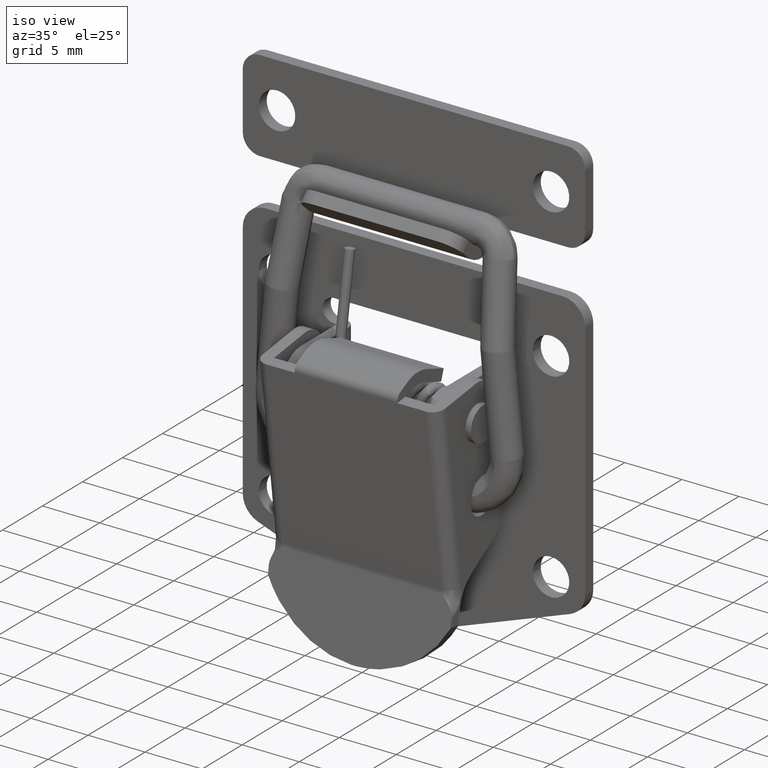
[diagram: clean part render]
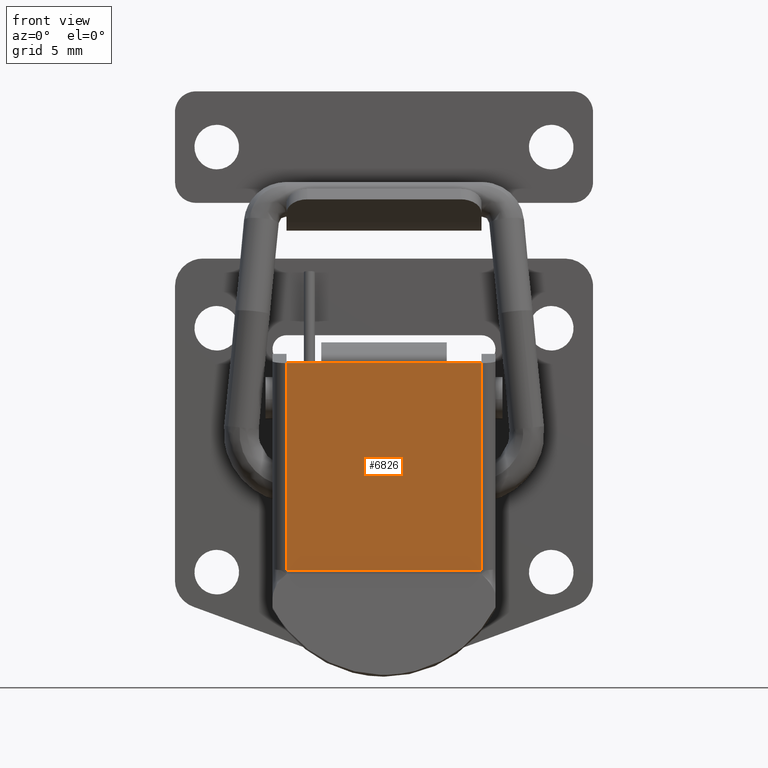
[diagram: tour spotlight — one face highlighted and labeled with its STEP entity id]
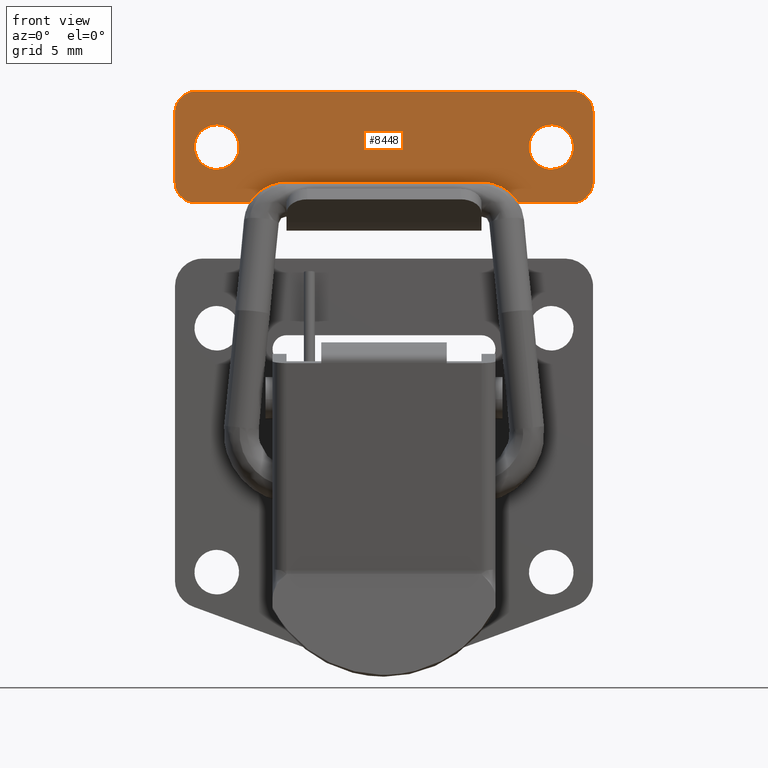
[diagram: tour spotlight — one face highlighted and labeled with its STEP entity id]
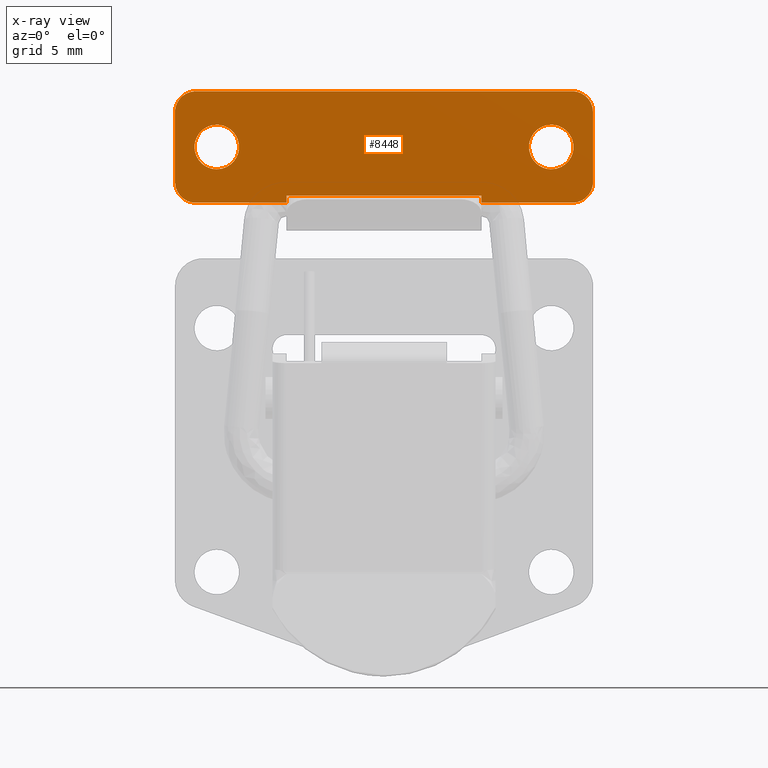
[diagram: x-ray of the same camera — body ghosted, this tour face saturated]
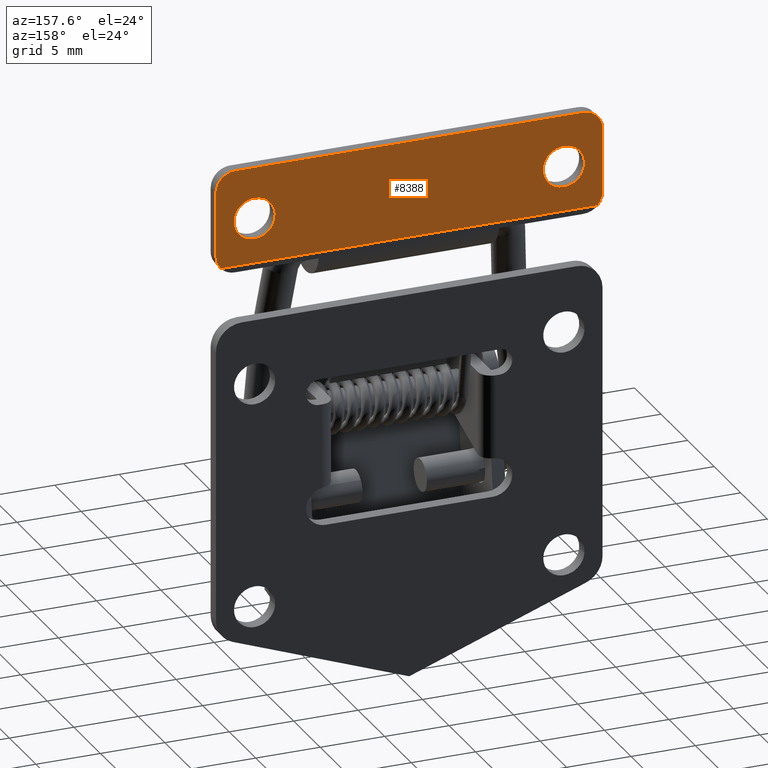
[diagram: tour spotlight — one face highlighted and labeled with its STEP entity id]
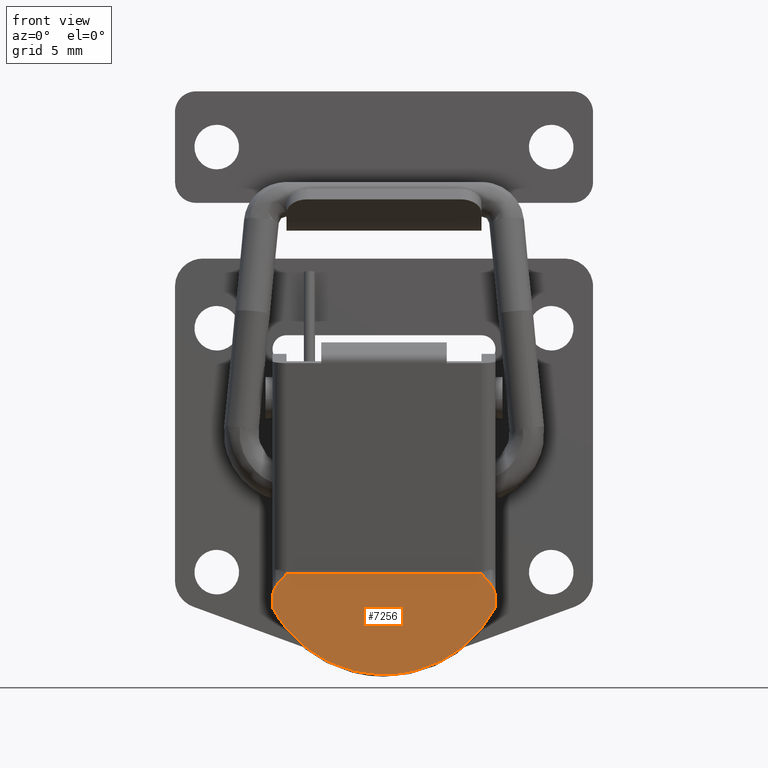
[diagram: tour spotlight — one face highlighted and labeled with its STEP entity id]
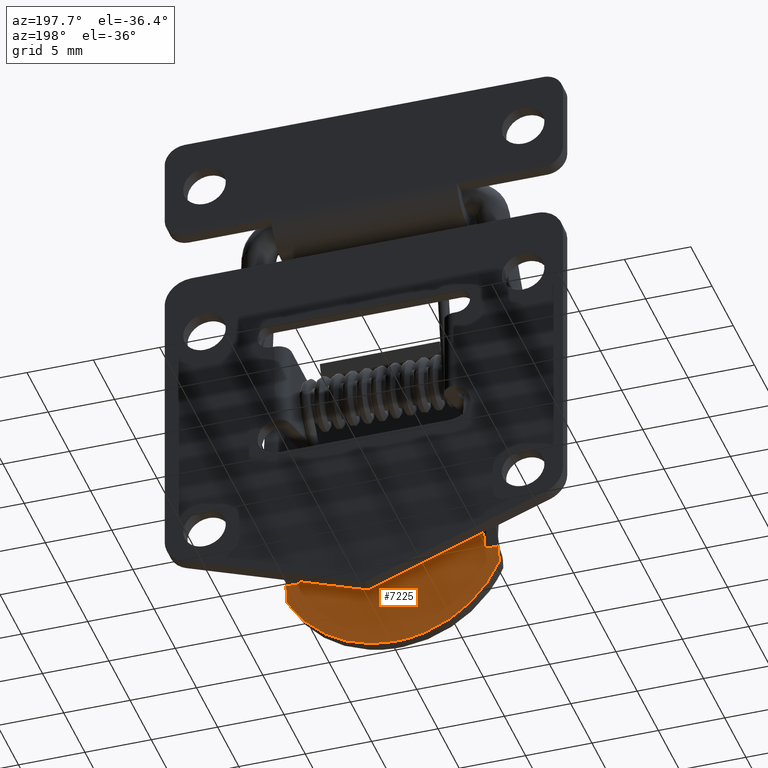
[diagram: tour spotlight — one face highlighted and labeled with its STEP entity id]
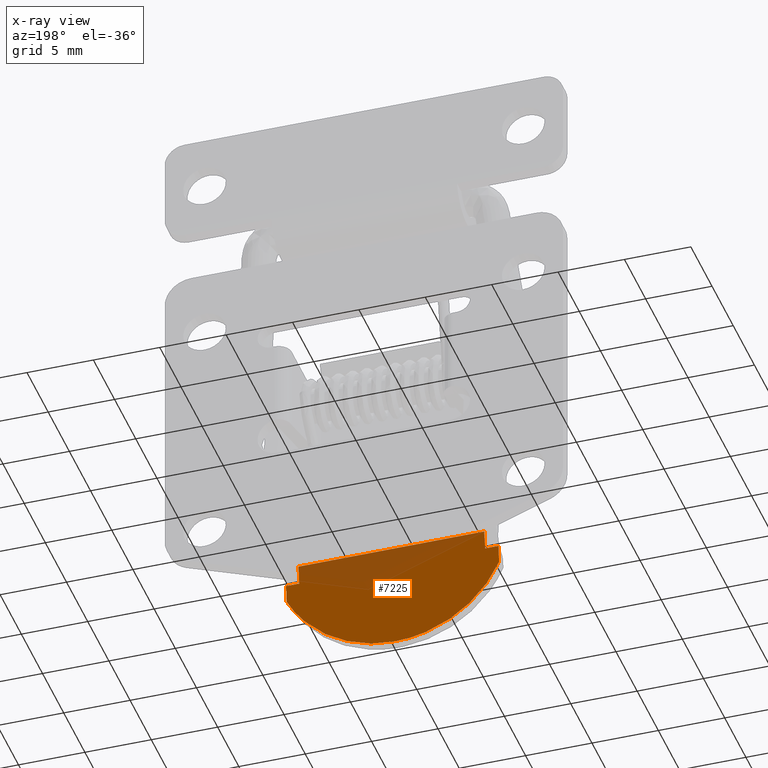
[diagram: x-ray of the same camera — body ghosted, this tour face saturated]
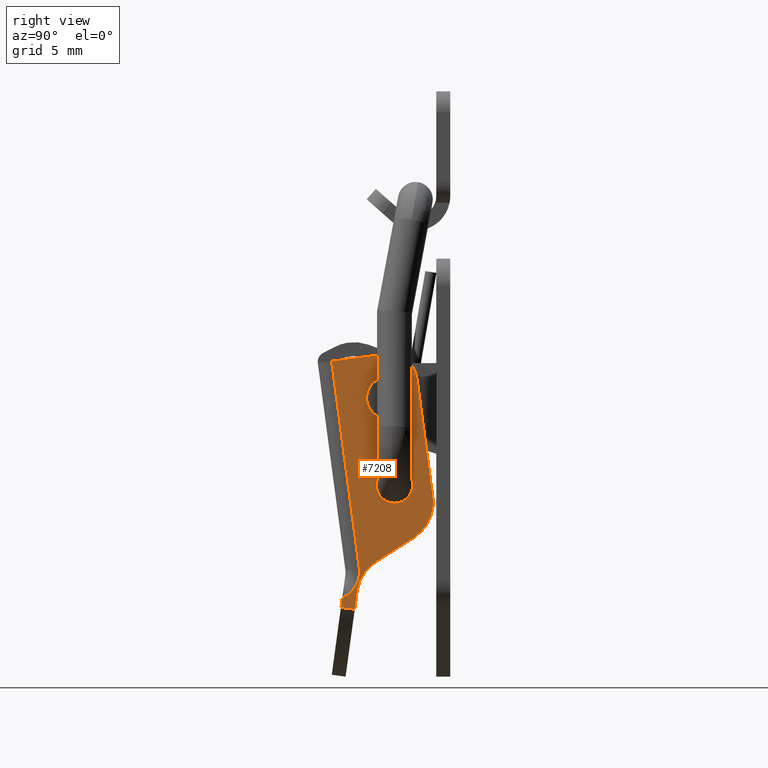
[diagram: tour spotlight — one face highlighted and labeled with its STEP entity id]
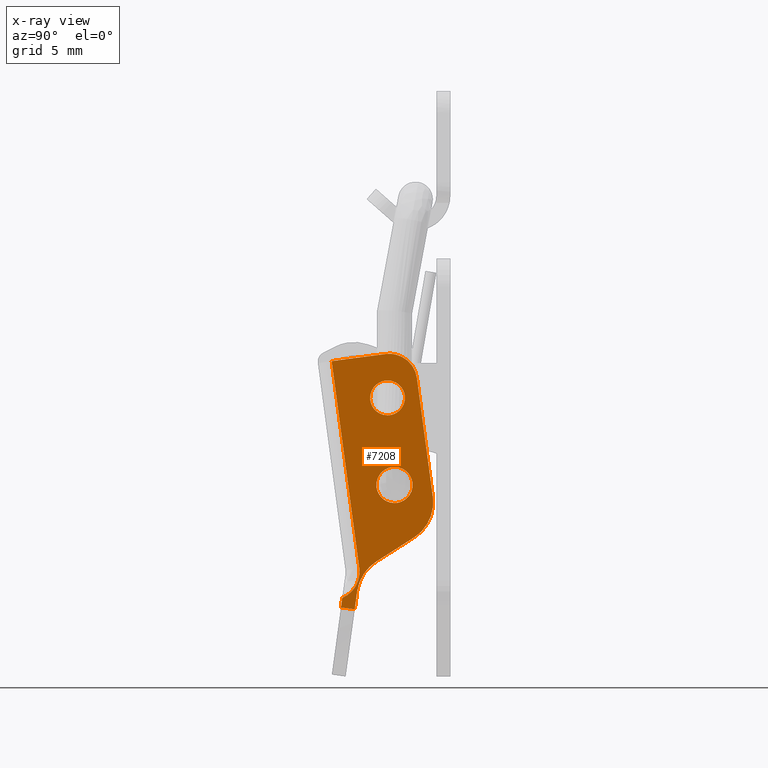
[diagram: x-ray of the same camera — body ghosted, this tour face saturated]
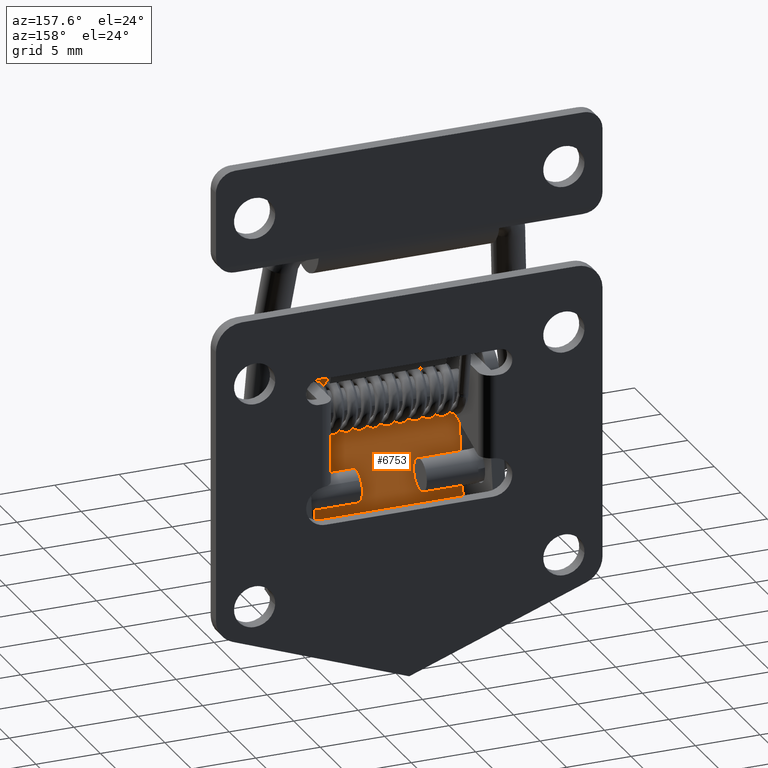
[diagram: tour spotlight — one face highlighted and labeled with its STEP entity id]
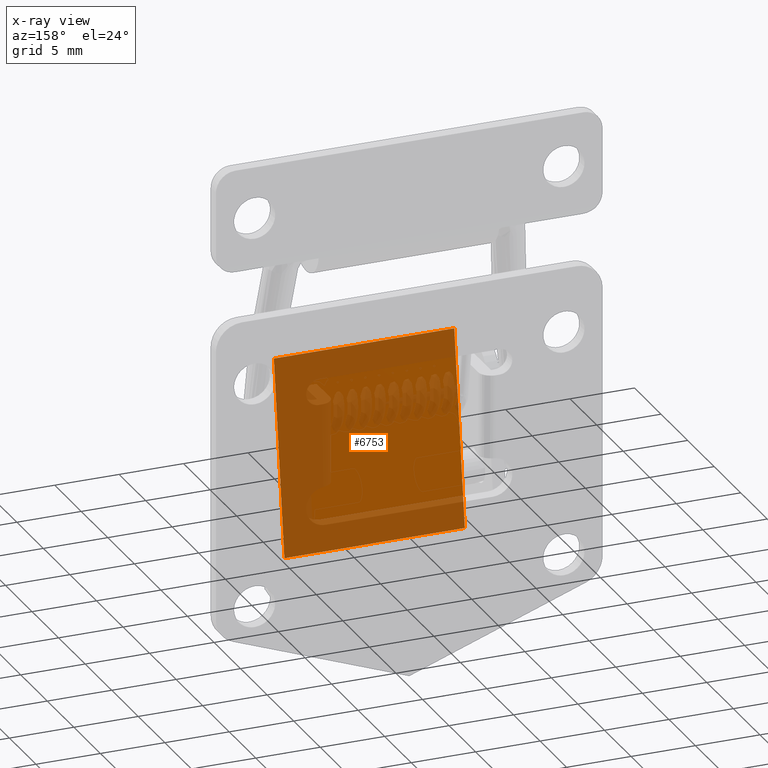
[diagram: x-ray of the same camera — body ghosted, this tour face saturated]
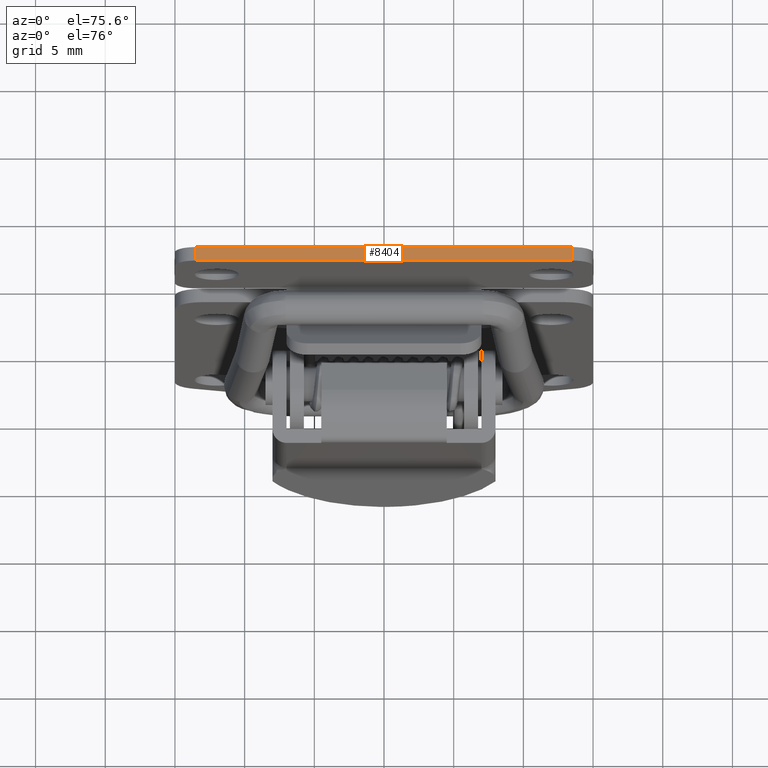
[diagram: tour spotlight — one face highlighted and labeled with its STEP entity id]
A machine part: a face-by-face anatomy tour. The part has 169 B-rep faces; the first image is the clean iso view, then the 8 largest visible faces are spotlighted one at a time (largest first), each with its STEP entity span.

Face 1 — front view, entity #6826. In plain terms, the highlighted face is a freeform B-spline surface patch.
Definition (entity closure, byte-faithful):
#5995=CARTESIAN_POINT('',(-7.001173843775210,-4.499999999999949,-11.241196161328499));
#5996=VERTEX_POINT('',#5995);
#6017=CARTESIAN_POINT('',(-7.001173843775210,4.500000000000060,-11.241196161328499));
#6018=VERTEX_POINT('',#6017);
#6032=CARTESIAN_POINT('',(-7.001173843775210,-4.499999999999949,-11.241196161328499));
#6033=CARTESIAN_POINT('',(-7.001173843775210,4.500000000000060,-11.241196161328499));
#6034=QUASI_UNIFORM_CURVE('',1,(#6032,#6033),.UNSPECIFIED.,.F.,.U.);
#6035=EDGE_CURVE('',#5996,#6018,#6034,.T.);
#6291=CARTESIAN_POINT('',(-7.0,4.500000000000060,-11.250000000000000));
#6292=VERTEX_POINT('',#6291);
#6293=CARTESIAN_POINT('',(-7.001173843775210,4.500000000000060,-11.241196161328499));
#6294=CARTESIAN_POINT('',(-7.0,4.500000000000060,-11.250000000000000));
#6295=QUASI_UNIFORM_CURVE('',1,(#6293,#6294),.UNSPECIFIED.,.F.,.U.);
#6296=EDGE_CURVE('',#6018,#6292,#6295,.T.);
#6321=CARTESIAN_POINT('',(-7.0,-4.499999999999949,-11.250000000000000));
#6322=VERTEX_POINT('',#6321);
#6323=CARTESIAN_POINT('',(-7.001173843775210,-4.499999999999949,-11.241196161328499));
#6324=CARTESIAN_POINT('',(-7.0,-4.499999999999949,-11.250000000000000));
#6325=QUASI_UNIFORM_CURVE('',1,(#6323,#6324),.UNSPECIFIED.,.F.,.U.);
#6326=EDGE_CURVE('',#5996,#6322,#6325,.T.);
#6361=CARTESIAN_POINT('',(-5.017788914234390,-7.0,-26.116583143242000));
#6362=VERTEX_POINT('',#6361);
#6443=CARTESIAN_POINT('',(-7.0,-7.0,-11.250000000000000));
#6444=VERTEX_POINT('',#6443);
#6460=CARTESIAN_POINT('',(-5.017788914234390,-7.0,-26.116583143242000));
#6461=CARTESIAN_POINT('',(-7.0,-7.0,-11.250000000000000));
#6462=QUASI_UNIFORM_CURVE('',1,(#6460,#6461),.UNSPECIFIED.,.F.,.U.);
#6463=EDGE_CURVE('',#6362,#6444,#6462,.T.);
#6515=CARTESIAN_POINT('',(-5.017788914234390,6.999995999999999,-26.116583143242000));
#6516=VERTEX_POINT('',#6515);
#6577=CARTESIAN_POINT('',(-7.0,6.999995999999999,-11.250000000000000));
#6578=VERTEX_POINT('',#6577);
#6598=CARTESIAN_POINT('',(-7.0,6.999995999999999,-11.250000000000000));
#6599=CARTESIAN_POINT('',(-5.017788914234390,6.999995999999999,-26.116583143242000));
#6600=QUASI_UNIFORM_CURVE('',1,(#6598,#6599),.UNSPECIFIED.,.F.,.U.);
#6601=EDGE_CURVE('',#6578,#6516,#6600,.T.);
#6774=CARTESIAN_POINT('',(-5.017788914234390,6.999995999999999,-26.116583143242000));
#6775=CARTESIAN_POINT('',(-5.017788914234390,-7.0,-26.116583143242000));
#6776=QUASI_UNIFORM_CURVE('',1,(#6774,#6775),.UNSPECIFIED.,.F.,.U.);
#6777=EDGE_CURVE('',#6516,#6362,#6776,.T.);
#6803=CARTESIAN_POINT('',(-7.100243855644393,-7.699299773065293,-10.498171082667060));
#6804=CARTESIAN_POINT('',(-4.918718939187760,-7.699299773065293,-26.859607956091718));
#6805=CARTESIAN_POINT('',(-7.100243855644393,7.699296148574445,-10.498171082667060));
#6806=CARTESIAN_POINT('',(-4.918718939187760,7.699296148574445,-26.859607956091718));
#6807=B_SPLINE_SURFACE_WITH_KNOTS('',1,1,((#6803,#6805),(#6804,#6806)),.UNSPECIFIED.,.F.,.F.,.U.,(2,2),(2,2),(0.0,16.506231172626329),(0.0,15.398595921639741),.UNSPECIFIED.);
#6808=ORIENTED_EDGE('',*,*,#6326,.F.);
#6809=ORIENTED_EDGE('',*,*,#6035,.T.);
#6810=ORIENTED_EDGE('',*,*,#6296,.T.);
#6811=CARTESIAN_POINT('',(-7.0,4.500000000000060,-11.250000000000000));
#6812=CARTESIAN_POINT('',(-7.0,6.999995999999999,-11.250000000000000));
#6813=QUASI_UNIFORM_CURVE('',1,(#6811,#6812),.UNSPECIFIED.,.F.,.U.);
#6814=EDGE_CURVE('',#6292,#6578,#6813,.T.);
#6815=ORIENTED_EDGE('',*,*,#6814,.T.);
#6816=ORIENTED_EDGE('',*,*,#6601,.T.);
#6817=ORIENTED_EDGE('',*,*,#6777,.T.);
#6818=ORIENTED_EDGE('',*,*,#6463,.T.);
#6819=CARTESIAN_POINT('',(-7.0,-7.0,-11.250000000000000));
#6820=CARTESIAN_POINT('',(-7.0,-4.499999999999949,-11.250000000000000));
#6821=QUASI_UNIFORM_CURVE('',1,(#6819,#6820),.UNSPECIFIED.,.F.,.U.);
#6822=EDGE_CURVE('',#6444,#6322,#6821,.T.);
#6823=ORIENTED_EDGE('',*,*,#6822,.T.);
#6824=EDGE_LOOP('',(#6808,#6809,#6810,#6815,#6816,#6817,#6818,#6823));
#6825=FACE_OUTER_BOUND('',#6824,.T.);
#6826=ADVANCED_FACE('',(#6825),#6807,.F.);

Face 2 — front view, entity #8448. An x-ray twin of the same camera follows (body ghosted, this face saturated) — the face is partly hidden behind the body. In plain terms, the highlighted face is a freeform B-spline surface patch.
Definition (entity closure, byte-faithful):
#7339=CARTESIAN_POINT('',(1.500000000000055,-13.588815242174510,3.561145224487379));
#7340=VERTEX_POINT('',#7339);
#7346=CARTESIAN_POINT('',(1.500000000000055,-12.0,5.350000000000090));
#7347=VERTEX_POINT('',#7346);
#7348=CARTESIAN_POINT('',(1.500000000000055,-13.588815242174514,3.561145224487380));
#7349=CARTESIAN_POINT('',(1.500000000000055,-13.600000000000007,3.655241408494483));
#7350=CARTESIAN_POINT('',(1.500000000000055,-13.600000000000000,3.750000000000090));
#7351=CARTESIAN_POINT('',(1.500000000000055,-13.600000000000003,5.350000000000089));
#7352=CARTESIAN_POINT('',(1.500000000000055,-12.0,5.350000000000090));
#7360=(BOUNDED_CURVE()B_SPLINE_CURVE(2,(#7348,#7349,#7350,#7351,#7352),.UNSPECIFIED.,.F.,.U.)B_SPLINE_CURVE_WITH_KNOTS((3,2,3),(0.229562473502476,0.250000000000000,0.500000000000000),.UNSPECIFIED.)CURVE()GEOMETRIC_REPRESENTATION_ITEM()RATIONAL_B_SPLINE_CURVE((0.956026754162076,0.976055948318220,1.0,0.707106781186548,1.0))REPRESENTATION_ITEM(''));
#7361=EDGE_CURVE('',#7340,#7347,#7360,.T.);
#7363=CARTESIAN_POINT('',(1.500000000000055,-10.402984322529850,3.847677663334871));
#7364=VERTEX_POINT('',#7363);
#7365=CARTESIAN_POINT('',(1.500000000000055,-12.0,5.350000000000090));
#7366=CARTESIAN_POINT('',(1.500000000000055,-10.494870293100085,5.350000000000089));
#7367=CARTESIAN_POINT('',(1.500000000000056,-10.402984322529850,3.847677663334870));
#7375=(BOUNDED_CURVE()B_SPLINE_CURVE(2,(#7365,#7366,#7367),.UNSPECIFIED.,.F.,.U.)B_SPLINE_CURVE_WITH_KNOTS((3,3),(0.500000000000000,0.739332962224896),.UNSPECIFIED.)CURVE()GEOMETRIC_REPRESENTATION_ITEM()RATIONAL_B_SPLINE_CURVE((1.0,0.719603993303167,0.976072041636613))REPRESENTATION_ITEM(''));
#7376=EDGE_CURVE('',#7347,#7364,#7375,.T.);
#7450=CARTESIAN_POINT('',(1.500000000000055,-12.0,2.150000000000090));
#7451=VERTEX_POINT('',#7450);
#7452=CARTESIAN_POINT('',(1.500000000000055,-10.402984322529848,3.847677663334871));
#7453=CARTESIAN_POINT('',(1.500000000000055,-10.400000000000000,3.798884421357064));
#7454=CARTESIAN_POINT('',(1.500000000000055,-10.400000000000000,3.750000000000090));
#7455=CARTESIAN_POINT('',(1.500000000000055,-10.400000000000000,2.150000000000090));
#7456=CARTESIAN_POINT('',(1.500000000000055,-12.0,2.150000000000090));
#7464=(BOUNDED_CURVE()B_SPLINE_CURVE(2,(#7452,#7453,#7454,#7455,#7456),.UNSPECIFIED.,.F.,.U.)B_SPLINE_CURVE_WITH_KNOTS((3,2,3),(0.739332962224895,0.750000000000000,1.0),.UNSPECIFIED.)CURVE()GEOMETRIC_REPRESENTATION_ITEM()RATIONAL_B_SPLINE_CURVE((0.976072041636611,0.987502787883380,1.0,0.707106781186548,1.0))REPRESENTATION_ITEM(''));
#7465=EDGE_CURVE('',#7364,#7451,#7464,.T.);
#7467=CARTESIAN_POINT('',(1.500000000000055,-12.0,2.150000000000090));
#7468=CARTESIAN_POINT('',(1.500000000000054,-13.421079241410682,2.150000000000090));
#7469=CARTESIAN_POINT('',(1.500000000000055,-13.588815242174515,3.561145224487379));
#7477=(BOUNDED_CURVE()B_SPLINE_CURVE(2,(#7467,#7468,#7469),.UNSPECIFIED.,.F.,.U.)B_SPLINE_CURVE_WITH_KNOTS((3,3),(0.0,0.229562473502476),.UNSPECIFIED.)CURVE()GEOMETRIC_REPRESENTATION_ITEM()RATIONAL_B_SPLINE_CURVE((1.0,0.731050832868328,0.956026754162076))REPRESENTATION_ITEM(''));
#7478=EDGE_CURVE('',#7451,#7340,#7477,.T.);
#7525=CARTESIAN_POINT('',(1.500000000000055,10.411184757825250,3.561145224487374));
#7526=VERTEX_POINT('',#7525);
#7532=CARTESIAN_POINT('',(1.500000000000055,11.999999999999760,5.350000000000085));
#7533=VERTEX_POINT('',#7532);
#7534=CARTESIAN_POINT('',(1.500000000000055,10.411184757825250,3.561145224487374));
#7535=CARTESIAN_POINT('',(1.500000000000055,10.399999999999755,3.655241408494478));
#7536=CARTESIAN_POINT('',(1.500000000000055,10.399999999999761,3.750000000000085));
#7537=CARTESIAN_POINT('',(1.500000000000055,10.399999999999761,5.350000000000086));
#7538=CARTESIAN_POINT('',(1.500000000000055,11.999999999999760,5.350000000000085));
#7546=(BOUNDED_CURVE()B_SPLINE_CURVE(2,(#7534,#7535,#7536,#7537,#7538),.UNSPECIFIED.,.F.,.U.)B_SPLINE_CURVE_WITH_KNOTS((3,2,3),(0.229562473502476,0.250000000000000,0.500000000000000),.UNSPECIFIED.)CURVE()GEOMETRIC_REPRESENTATION_ITEM()RATIONAL_B_SPLINE_CURVE((0.956026754162076,0.976055948318220,1.0,0.707106781186548,1.0))REPRESENTATION_ITEM(''));
#7547=EDGE_CURVE('',#7526,#7533,#7546,.T.);
#7549=CARTESIAN_POINT('',(1.500000000000055,13.597015677469910,3.847677663334866));
#7550=VERTEX_POINT('',#7549);
#7551=CARTESIAN_POINT('',(1.500000000000055,11.999999999999760,5.350000000000085));
#7552=CARTESIAN_POINT('',(1.500000000000055,13.505129706899673,5.350000000000086));
#7553=CARTESIAN_POINT('',(1.500000000000056,13.597015677469917,3.847677663334866));
#7561=(BOUNDED_CURVE()B_SPLINE_CURVE(2,(#7551,#7552,#7553),.UNSPECIFIED.,.F.,.U.)B_SPLINE_CURVE_WITH_KNOTS((3,3),(0.500000000000000,0.739332962224896),.UNSPECIFIED.)CURVE()GEOMETRIC_REPRESENTATION_ITEM()RATIONAL_B_SPLINE_CURVE((1.0,0.719603993303167,0.976072041636613))REPRESENTATION_ITEM(''));
#7562=EDGE_CURVE('',#7533,#7550,#7561,.T.);
#7636=CARTESIAN_POINT('',(1.500000000000055,11.999999999999760,2.150000000000085));
#7637=VERTEX_POINT('',#7636);
#7638=CARTESIAN_POINT('',(1.500000000000055,13.597015677469912,3.847677663334865));
#7639=CARTESIAN_POINT('',(1.500000000000055,13.599999999999762,3.798884421357059));
#7640=CARTESIAN_POINT('',(1.500000000000055,13.599999999999760,3.750000000000085));
#7641=CARTESIAN_POINT('',(1.500000000000055,13.599999999999758,2.150000000000086));
#7642=CARTESIAN_POINT('',(1.500000000000055,11.999999999999760,2.150000000000085));
#7650=(BOUNDED_CURVE()B_SPLINE_CURVE(2,(#7638,#7639,#7640,#7641,#7642),.UNSPECIFIED.,.F.,.U.)B_SPLINE_CURVE_WITH_KNOTS((3,2,3),(0.739332962224895,0.750000000000000,1.0),.UNSPECIFIED.)CURVE()GEOMETRIC_REPRESENTATION_ITEM()RATIONAL_B_SPLINE_CURVE((0.976072041636611,0.987502787883380,1.0,0.707106781186548,1.0))REPRESENTATION_ITEM(''));
#7651=EDGE_CURVE('',#7550,#7637,#7650,.T.);
#7653=CARTESIAN_POINT('',(1.500000000000055,11.999999999999760,2.150000000000085));
#7654=CARTESIAN_POINT('',(1.500000000000054,10.578920758589074,2.150000000000084));
#7655=CARTESIAN_POINT('',(1.500000000000055,10.411184757825250,3.561145224487374));
#7663=(BOUNDED_CURVE()B_SPLINE_CURVE(2,(#7653,#7654,#7655),.UNSPECIFIED.,.F.,.U.)B_SPLINE_CURVE_WITH_KNOTS((3,3),(0.0,0.229562473502476),.UNSPECIFIED.)CURVE()GEOMETRIC_REPRESENTATION_ITEM()RATIONAL_B_SPLINE_CURVE((1.0,0.731050832868328,0.956026754162076))REPRESENTATION_ITEM(''));
#7664=EDGE_CURVE('',#7637,#7526,#7663,.T.);
#7684=CARTESIAN_POINT('',(1.500000000000000,-15.0,6.250000000000091));
#7685=VERTEX_POINT('',#7684);
#7686=CARTESIAN_POINT('',(1.500000000000000,-13.500000000000000,7.750000000000091));
#7687=VERTEX_POINT('',#7686);
#7688=CARTESIAN_POINT('',(1.500000000000000,-15.0,6.250000000000091));
#7689=CARTESIAN_POINT('',(1.500000000000000,-14.999999999999995,7.750000000000091));
#7690=CARTESIAN_POINT('',(1.500000000000000,-13.500000000000000,7.750000000000091));
#7698=(BOUNDED_CURVE()B_SPLINE_CURVE(2,(#7688,#7689,#7690),.UNSPECIFIED.,.F.,.U.)CURVE()GEOMETRIC_REPRESENTATION_ITEM()QUASI_UNIFORM_CURVE()RATIONAL_B_SPLINE_CURVE((1.0,0.707106781186548,1.0))REPRESENTATION_ITEM(''));
#7699=EDGE_CURVE('',#7685,#7687,#7698,.T.);
#7762=CARTESIAN_POINT('',(1.500000000000000,-15.0,1.248413000000000));
#7763=VERTEX_POINT('',#7762);
#7769=CARTESIAN_POINT('',(1.499999999999946,-13.500000000000000,-0.251587000000000));
#7770=VERTEX_POINT('',#7769);
#7771=CARTESIAN_POINT('',(1.499999999999946,-13.500000000000000,-0.251587000000000));
#7772=CARTESIAN_POINT('',(1.499999999999946,-14.999999999999995,-0.251587000000000));
#7773=CARTESIAN_POINT('',(1.499999999999946,-15.0,1.248413000000000));
#7781=(BOUNDED_CURVE()B_SPLINE_CURVE(2,(#7771,#7772,#7773),.UNSPECIFIED.,.F.,.U.)CURVE()GEOMETRIC_REPRESENTATION_ITEM()QUASI_UNIFORM_CURVE()RATIONAL_B_SPLINE_CURVE((1.0,0.707106781186548,1.0))REPRESENTATION_ITEM(''));
#7782=EDGE_CURVE('',#7770,#7763,#7781,.T.);
#7955=CARTESIAN_POINT('',(1.500000000000000,13.499999999999840,7.750000000000091));
#7956=VERTEX_POINT('',#7955);
#7957=CARTESIAN_POINT('',(1.500000000000000,14.999999999999799,6.250000000000091));
#7958=VERTEX_POINT('',#7957);
#7959=CARTESIAN_POINT('',(1.500000000000000,13.499999999999821,7.750000000000091));
#7960=CARTESIAN_POINT('',(1.500000000000000,14.999999999999826,7.750000000000091));
#7961=CARTESIAN_POINT('',(1.500000000000000,14.999999999999821,6.250000000000091));
#7969=(BOUNDED_CURVE()B_SPLINE_CURVE(2,(#7959,#7960,#7961),.UNSPECIFIED.,.F.,.U.)CURVE()GEOMETRIC_REPRESENTATION_ITEM()QUASI_UNIFORM_CURVE()RATIONAL_B_SPLINE_CURVE((1.0,0.707106781186548,1.0))REPRESENTATION_ITEM(''));
#7970=EDGE_CURVE('',#7956,#7958,#7969,.T.);
#8037=CARTESIAN_POINT('',(1.499999999999946,13.499999999999821,-0.251587000000000));
#8038=VERTEX_POINT('',#8037);
#8044=CARTESIAN_POINT('',(1.500000000000000,14.999999999999799,1.248413000000000));
#8045=VERTEX_POINT('',#8044);
#8046=CARTESIAN_POINT('',(1.500000000000000,14.999999999999821,1.248413000000000));
#8047=CARTESIAN_POINT('',(1.500000000000000,14.999999999999826,-0.251587000000000));
#8048=CARTESIAN_POINT('',(1.499999999999946,13.499999999999821,-0.251587000000000));
#8056=(BOUNDED_CURVE()B_SPLINE_CURVE(2,(#8046,#8047,#8048),.UNSPECIFIED.,.F.,.U.)CURVE()GEOMETRIC_REPRESENTATION_ITEM()QUASI_UNIFORM_CURVE()RATIONAL_B_SPLINE_CURVE((1.0,0.707106781186548,1.0))REPRESENTATION_ITEM(''));
#8057=EDGE_CURVE('',#8045,#8038,#8056,.T.);
#8087=CARTESIAN_POINT('',(1.500000000000000,6.999999999999790,-0.251587000000000));
#8088=VERTEX_POINT('',#8087);
#8089=CARTESIAN_POINT('',(1.500000000000000,6.999999999999790,-0.251587000000000));
#8090=CARTESIAN_POINT('',(1.499999999999946,13.499999999999821,-0.251587000000000));
#8091=QUASI_UNIFORM_CURVE('',1,(#8089,#8090),.UNSPECIFIED.,.F.,.U.);
#8092=EDGE_CURVE('',#8088,#8038,#8091,.T.);
#8130=CARTESIAN_POINT('',(1.500000000000000,6.999999999999790,0.250000000000000));
#8131=VERTEX_POINT('',#8130);
#8147=CARTESIAN_POINT('',(1.500000000000000,6.999999999999790,0.250000000000000));
#8148=CARTESIAN_POINT('',(1.500000000000000,6.999999999999790,-0.251587000000000));
#8149=QUASI_UNIFORM_CURVE('',1,(#8147,#8148),.UNSPECIFIED.,.F.,.U.);
#8150=EDGE_CURVE('',#8131,#8088,#8149,.T.);
#8184=CARTESIAN_POINT('',(1.499999999999946,-7.000000000000210,-0.251587000000000));
#8185=VERTEX_POINT('',#8184);
#8186=CARTESIAN_POINT('',(1.499999999999946,-13.500000000000000,-0.251587000000000));
#8187=CARTESIAN_POINT('',(1.499999999999946,-7.000000000000210,-0.251587000000000));
#8188=QUASI_UNIFORM_CURVE('',1,(#8186,#8187),.UNSPECIFIED.,.F.,.U.);
#8189=EDGE_CURVE('',#7770,#8185,#8188,.T.);
#8235=CARTESIAN_POINT('',(1.500000000000000,-7.000000000000210,0.250000000000000));
#8236=VERTEX_POINT('',#8235);
#8237=CARTESIAN_POINT('',(1.499999999999946,-7.000000000000210,-0.251587000000000));
#8238=CARTESIAN_POINT('',(1.500000000000000,-7.000000000000210,0.250000000000000));
#8239=QUASI_UNIFORM_CURVE('',1,(#8237,#8238),.UNSPECIFIED.,.F.,.U.);
#8240=EDGE_CURVE('',#8185,#8236,#8239,.T.);
#8396=CARTESIAN_POINT('',(1.500000000000000,-13.500000000000000,7.750000000000091));
#8397=CARTESIAN_POINT('',(1.500000000000000,13.499999999999840,7.750000000000091));
#8398=QUASI_UNIFORM_CURVE('',1,(#8396,#8397),.UNSPECIFIED.,.F.,.U.);
#8399=EDGE_CURVE('',#7687,#7956,#8398,.T.);
#8405=CARTESIAN_POINT('',(1.500000000000000,-16.498499941854170,-0.651266255141376));
#8406=CARTESIAN_POINT('',(1.500000000000000,-16.498499941854170,8.149679469760757));
#8407=CARTESIAN_POINT('',(1.500000000000000,16.498500746516680,-0.651266255141376));
#8408=CARTESIAN_POINT('',(1.500000000000000,16.498500746516680,8.149679469760757));
#8409=B_SPLINE_SURFACE_WITH_KNOTS('',1,1,((#8405,#8407),(#8406,#8408)),.UNSPECIFIED.,.F.,.F.,.U.,(2,2),(2,2),(0.0,8.800945724902133),(0.0,32.997000688370854),.UNSPECIFIED.);
#8410=CARTESIAN_POINT('',(1.500000000000000,14.999999999999799,1.248413000000000));
#8411=CARTESIAN_POINT('',(1.500000000000000,14.999999999999799,6.250000000000091));
#8412=QUASI_UNIFORM_CURVE('',1,(#8410,#8411),.UNSPECIFIED.,.F.,.U.);
#8413=EDGE_CURVE('',#8045,#7958,#8412,.T.);
#8414=ORIENTED_EDGE('',*,*,#8413,.F.);
#8415=ORIENTED_EDGE('',*,*,#8057,.T.);
#8416=ORIENTED_EDGE('',*,*,#8092,.F.);
#8417=ORIENTED_EDGE('',*,*,#8150,.F.);
#8418=CARTESIAN_POINT('',(1.500000000000000,-7.000000000000210,0.250000000000000));
#8419=CARTESIAN_POINT('',(1.500000000000000,6.999999999999790,0.250000000000000));
#8420=QUASI_UNIFORM_CURVE('',1,(#8418,#8419),.UNSPECIFIED.,.F.,.U.);
#8421=EDGE_CURVE('',#8236,#8131,#8420,.T.);
#8422=ORIENTED_EDGE('',*,*,#8421,.F.);
#8423=ORIENTED_EDGE('',*,*,#8240,.F.);
#8424=ORIENTED_EDGE('',*,*,#8189,.F.);
#8425=ORIENTED_EDGE('',*,*,#7782,.T.);
#8426=CARTESIAN_POINT('',(1.500000000000000,-15.0,1.248413000000000));
#8427=CARTESIAN_POINT('',(1.500000000000000,-15.0,6.250000000000091));
#8428=QUASI_UNIFORM_CURVE('',1,(#8426,#8427),.UNSPECIFIED.,.F.,.U.);
#8429=EDGE_CURVE('',#7763,#7685,#8428,.T.);
#8430=ORIENTED_EDGE('',*,*,#8429,.T.);
#8431=ORIENTED_EDGE('',*,*,#7699,.T.);
#8432=ORIENTED_EDGE('',*,*,#8399,.T.);
#8433=ORIENTED_EDGE('',*,*,#7970,.T.);
#8434=EDGE_LOOP('',(#8414,#8415,#8416,#8417,#8422,#8423,#8424,#8425,#8430,#8431,#8432,#8433));
#8435=FACE_OUTER_BOUND('',#8434,.T.);
#8436=ORIENTED_EDGE('',*,*,#7562,.F.);
#8437=ORIENTED_EDGE('',*,*,#7547,.F.);
#8438=ORIENTED_EDGE('',*,*,#7664,.F.);
#8439=ORIENTED_EDGE('',*,*,#7651,.F.);
#8440=EDGE_LOOP('',(#8436,#8437,#8438,#8439));
#8441=FACE_BOUND('',#8440,.T.);
#8442=ORIENTED_EDGE('',*,*,#7376,.F.);
#8443=ORIENTED_EDGE('',*,*,#7361,.F.);
#8444=ORIENTED_EDGE('',*,*,#7478,.F.);
#8445=ORIENTED_EDGE('',*,*,#7465,.F.);
#8446=EDGE_LOOP('',(#8442,#8443,#8444,#8445));
#8447=FACE_BOUND('',#8446,.T.);
#8448=ADVANCED_FACE('',(#8435,#8441,#8447),#8409,.T.);

Face 3 — auxiliary view, entity #8388. In plain terms, the highlighted face is a freeform B-spline surface patch.
Definition (entity closure, byte-faithful):
#7320=CARTESIAN_POINT('',(2.499999999999835,-13.588815242174510,3.561145224487380));
#7321=VERTEX_POINT('',#7320);
#7322=CARTESIAN_POINT('',(2.499999999999835,-12.0,5.350000000000090));
#7323=VERTEX_POINT('',#7322);
#7324=CARTESIAN_POINT('',(2.499999999999835,-13.588815242174512,3.561145224487381));
#7325=CARTESIAN_POINT('',(2.499999999999835,-13.599999999999998,3.655241408494483));
#7326=CARTESIAN_POINT('',(2.499999999999835,-13.600000000000000,3.750000000000090));
#7327=CARTESIAN_POINT('',(2.499999999999836,-13.600000000000003,5.350000000000089));
#7328=CARTESIAN_POINT('',(2.499999999999835,-12.0,5.350000000000090));
#7336=(BOUNDED_CURVE()B_SPLINE_CURVE(2,(#7324,#7325,#7326,#7327,#7328),.UNSPECIFIED.,.F.,.U.)B_SPLINE_CURVE_WITH_KNOTS((3,2,3),(0.229562473502476,0.250000000000000,0.500000000000000),.UNSPECIFIED.)CURVE()GEOMETRIC_REPRESENTATION_ITEM()RATIONAL_B_SPLINE_CURVE((0.956026754162076,0.976055948318220,1.0,0.707106781186548,1.0))REPRESENTATION_ITEM(''));
#7337=EDGE_CURVE('',#7321,#7323,#7336,.T.);
#7378=CARTESIAN_POINT('',(2.499999999999835,-10.402984322529850,3.847677663334871));
#7379=VERTEX_POINT('',#7378);
#7385=CARTESIAN_POINT('',(2.499999999999835,-12.0,5.350000000000090));
#7386=CARTESIAN_POINT('',(2.499999999999836,-10.494870293100085,5.350000000000089));
#7387=CARTESIAN_POINT('',(2.499999999999835,-10.402984322529850,3.847677663334872));
#7395=(BOUNDED_CURVE()B_SPLINE_CURVE(2,(#7385,#7386,#7387),.UNSPECIFIED.,.F.,.U.)B_SPLINE_CURVE_WITH_KNOTS((3,3),(0.500000000000000,0.739332962224896),.UNSPECIFIED.)CURVE()GEOMETRIC_REPRESENTATION_ITEM()RATIONAL_B_SPLINE_CURVE((1.0,0.719603993303167,0.976072041636613))REPRESENTATION_ITEM(''));
#7396=EDGE_CURVE('',#7323,#7379,#7395,.T.);
#7419=CARTESIAN_POINT('',(2.499999999999835,-12.0,2.150000000000090));
#7420=VERTEX_POINT('',#7419);
#7421=CARTESIAN_POINT('',(2.499999999999835,-12.0,2.150000000000090));
#7422=CARTESIAN_POINT('',(2.499999999999836,-13.421079241410682,2.150000000000090));
#7423=CARTESIAN_POINT('',(2.499999999999836,-13.588815242174515,3.561145224487380));
#7431=(BOUNDED_CURVE()B_SPLINE_CURVE(2,(#7421,#7422,#7423),.UNSPECIFIED.,.F.,.U.)B_SPLINE_CURVE_WITH_KNOTS((3,3),(0.0,0.229562473502476),.UNSPECIFIED.)CURVE()GEOMETRIC_REPRESENTATION_ITEM()RATIONAL_B_SPLINE_CURVE((1.0,0.731050832868328,0.956026754162076))REPRESENTATION_ITEM(''));
#7432=EDGE_CURVE('',#7420,#7321,#7431,.T.);
#7434=CARTESIAN_POINT('',(2.499999999999834,-10.402984322529843,3.847677663334872));
#7435=CARTESIAN_POINT('',(2.499999999999835,-10.400000000000002,3.798884421357064));
#7436=CARTESIAN_POINT('',(2.499999999999835,-10.400000000000000,3.750000000000090));
#7437=CARTESIAN_POINT('',(2.499999999999836,-10.400000000000000,2.150000000000090));
#7438=CARTESIAN_POINT('',(2.499999999999835,-12.0,2.150000000000090));
#7446=(BOUNDED_CURVE()B_SPLINE_CURVE(2,(#7434,#7435,#7436,#7437,#7438),.UNSPECIFIED.,.F.,.U.)B_SPLINE_CURVE_WITH_KNOTS((3,2,3),(0.739332962224895,0.750000000000000,1.0),.UNSPECIFIED.)CURVE()GEOMETRIC_REPRESENTATION_ITEM()RATIONAL_B_SPLINE_CURVE((0.976072041636611,0.987502787883380,1.0,0.707106781186548,1.0))REPRESENTATION_ITEM(''));
#7447=EDGE_CURVE('',#7379,#7420,#7446,.T.);
#7506=CARTESIAN_POINT('',(2.499999999999836,10.411184757825250,3.561145224487374));
#7507=VERTEX_POINT('',#7506);
#7508=CARTESIAN_POINT('',(2.499999999999835,11.999999999999760,5.350000000000085));
#7509=VERTEX_POINT('',#7508);
#7510=CARTESIAN_POINT('',(2.499999999999835,10.411184757825250,3.561145224487374));
#7511=CARTESIAN_POINT('',(2.499999999999835,10.399999999999755,3.655241408494478));
#7512=CARTESIAN_POINT('',(2.499999999999835,10.399999999999761,3.750000000000085));
#7513=CARTESIAN_POINT('',(2.499999999999836,10.399999999999761,5.350000000000086));
#7514=CARTESIAN_POINT('',(2.499999999999835,11.999999999999760,5.350000000000085));
#7522=(BOUNDED_CURVE()B_SPLINE_CURVE(2,(#7510,#7511,#7512,#7513,#7514),.UNSPECIFIED.,.F.,.U.)B_SPLINE_CURVE_WITH_KNOTS((3,2,3),(0.229562473502476,0.250000000000000,0.500000000000000),.UNSPECIFIED.)CURVE()GEOMETRIC_REPRESENTATION_ITEM()RATIONAL_B_SPLINE_CURVE((0.956026754162076,0.976055948318220,1.0,0.707106781186548,1.0))REPRESENTATION_ITEM(''));
#7523=EDGE_CURVE('',#7507,#7509,#7522,.T.);
#7564=CARTESIAN_POINT('',(2.499999999999835,13.597015677469910,3.847677663334865));
#7565=VERTEX_POINT('',#7564);
#7571=CARTESIAN_POINT('',(2.499999999999835,11.999999999999760,5.350000000000085));
#7572=CARTESIAN_POINT('',(2.499999999999836,13.505129706899673,5.350000000000086));
#7573=CARTESIAN_POINT('',(2.499999999999835,13.597015677469917,3.847677663334865));
#7581=(BOUNDED_CURVE()B_SPLINE_CURVE(2,(#7571,#7572,#7573),.UNSPECIFIED.,.F.,.U.)B_SPLINE_CURVE_WITH_KNOTS((3,3),(0.500000000000000,0.739332962224896),.UNSPECIFIED.)CURVE()GEOMETRIC_REPRESENTATION_ITEM()RATIONAL_B_SPLINE_CURVE((1.0,0.719603993303167,0.976072041636613))REPRESENTATION_ITEM(''));
#7582=EDGE_CURVE('',#7509,#7565,#7581,.T.);
#7605=CARTESIAN_POINT('',(2.499999999999835,11.999999999999760,2.150000000000085));
#7606=VERTEX_POINT('',#7605);
#7607=CARTESIAN_POINT('',(2.499999999999835,11.999999999999760,2.150000000000085));
#7608=CARTESIAN_POINT('',(2.499999999999836,10.578920758589074,2.150000000000084));
#7609=CARTESIAN_POINT('',(2.499999999999836,10.411184757825250,3.561145224487374));
#7617=(BOUNDED_CURVE()B_SPLINE_CURVE(2,(#7607,#7608,#7609),.UNSPECIFIED.,.F.,.U.)B_SPLINE_CURVE_WITH_KNOTS((3,3),(0.0,0.229562473502476),.UNSPECIFIED.)CURVE()GEOMETRIC_REPRESENTATION_ITEM()RATIONAL_B_SPLINE_CURVE((1.0,0.731050832868328,0.956026754162076))REPRESENTATION_ITEM(''));
#7618=EDGE_CURVE('',#7606,#7507,#7617,.T.);
#7620=CARTESIAN_POINT('',(2.499999999999835,13.597015677469912,3.847677663334865));
#7621=CARTESIAN_POINT('',(2.499999999999836,13.599999999999762,3.798884421357059));
#7622=CARTESIAN_POINT('',(2.499999999999835,13.599999999999760,3.750000000000085));
#7623=CARTESIAN_POINT('',(2.499999999999836,13.599999999999758,2.150000000000086));
#7624=CARTESIAN_POINT('',(2.499999999999835,11.999999999999760,2.150000000000085));
#7632=(BOUNDED_CURVE()B_SPLINE_CURVE(2,(#7620,#7621,#7622,#7623,#7624),.UNSPECIFIED.,.F.,.U.)B_SPLINE_CURVE_WITH_KNOTS((3,2,3),(0.739332962224895,0.750000000000000,1.0),.UNSPECIFIED.)CURVE()GEOMETRIC_REPRESENTATION_ITEM()RATIONAL_B_SPLINE_CURVE((0.976072041636611,0.987502787883380,1.0,0.707106781186548,1.0))REPRESENTATION_ITEM(''));
#7633=EDGE_CURVE('',#7565,#7606,#7632,.T.);
#7701=CARTESIAN_POINT('',(2.499999999999885,-15.0,6.250000000000091));
#7702=VERTEX_POINT('',#7701);
#7708=CARTESIAN_POINT('',(2.499999999999885,-13.500000000000000,7.750000000000091));
#7709=VERTEX_POINT('',#7708);
#7710=CARTESIAN_POINT('',(2.499999999999885,-13.500000000000000,7.750000000000091));
#7711=CARTESIAN_POINT('',(2.499999999999885,-14.999999999999995,7.750000000000091));
#7712=CARTESIAN_POINT('',(2.499999999999885,-15.0,6.250000000000091));
#7720=(BOUNDED_CURVE()B_SPLINE_CURVE(2,(#7710,#7711,#7712),.UNSPECIFIED.,.F.,.U.)CURVE()GEOMETRIC_REPRESENTATION_ITEM()QUASI_UNIFORM_CURVE()RATIONAL_B_SPLINE_CURVE((1.0,0.707106781186548,1.0))REPRESENTATION_ITEM(''));
#7721=EDGE_CURVE('',#7709,#7702,#7720,.T.);
#7745=CARTESIAN_POINT('',(2.499999999999885,-15.0,1.248413000000000));
#7746=VERTEX_POINT('',#7745);
#7747=CARTESIAN_POINT('',(2.499999999999885,-14.619451419861919,0.250000000000000));
#7748=VERTEX_POINT('',#7747);
#7749=CARTESIAN_POINT('',(2.499999999999835,-15.0,1.248413000000000));
#7750=CARTESIAN_POINT('',(2.499999999999835,-14.999999999999998,0.676682793955954));
#7751=CARTESIAN_POINT('',(2.499999999999885,-14.619451419861919,0.250000000000000));
#7759=(BOUNDED_CURVE()B_SPLINE_CURVE(2,(#7749,#7750,#7751),.UNSPECIFIED.,.F.,.U.)CURVE()GEOMETRIC_REPRESENTATION_ITEM()QUASI_UNIFORM_CURVE()RATIONAL_B_SPLINE_CURVE((1.0,0.934425210109037,1.0))REPRESENTATION_ITEM(''));
#7760=EDGE_CURVE('',#7746,#7748,#7759,.T.);
#7972=CARTESIAN_POINT('',(2.499999999999885,13.499999999999840,7.750000000000091));
#7973=VERTEX_POINT('',#7972);
#7979=CARTESIAN_POINT('',(2.499999999999885,14.999999999999799,6.250000000000091));
#7980=VERTEX_POINT('',#7979);
#7981=CARTESIAN_POINT('',(2.499999999999885,14.999999999999821,6.250000000000091));
#7982=CARTESIAN_POINT('',(2.499999999999885,14.999999999999826,7.750000000000091));
#7983=CARTESIAN_POINT('',(2.499999999999885,13.499999999999821,7.750000000000091));
#7991=(BOUNDED_CURVE()B_SPLINE_CURVE(2,(#7981,#7982,#7983),.UNSPECIFIED.,.F.,.U.)CURVE()GEOMETRIC_REPRESENTATION_ITEM()QUASI_UNIFORM_CURVE()RATIONAL_B_SPLINE_CURVE((1.0,0.707106781186548,1.0))REPRESENTATION_ITEM(''));
#7992=EDGE_CURVE('',#7980,#7973,#7991,.T.);
#8018=CARTESIAN_POINT('',(2.499999999999885,14.619451419861800,0.250000000000000));
#8019=VERTEX_POINT('',#8018);
#8059=CARTESIAN_POINT('',(2.499999999999885,14.999999999999799,1.248413000000000));
#8060=VERTEX_POINT('',#8059);
#8066=CARTESIAN_POINT('',(2.499999999999885,14.619451419861800,0.250000000000000));
#8067=CARTESIAN_POINT('',(2.499999999999885,14.999999999999824,0.676682793955976));
#8068=CARTESIAN_POINT('',(2.499999999999885,14.999999999999821,1.248413000000000));
#8076=(BOUNDED_CURVE()B_SPLINE_CURVE(2,(#8066,#8067,#8068),.UNSPECIFIED.,.F.,.U.)CURVE()GEOMETRIC_REPRESENTATION_ITEM()QUASI_UNIFORM_CURVE()RATIONAL_B_SPLINE_CURVE((1.0,0.934425210109042,1.0))REPRESENTATION_ITEM(''));
#8077=EDGE_CURVE('',#8019,#8060,#8076,.T.);
#8336=CARTESIAN_POINT('',(2.499999999999885,-14.619451419861919,0.250000000000000));
#8337=CARTESIAN_POINT('',(2.499999999999885,14.619451419861800,0.250000000000000));
#8338=QUASI_UNIFORM_CURVE('',1,(#8336,#8337),.UNSPECIFIED.,.F.,.U.);
#8339=EDGE_CURVE('',#7748,#8019,#8338,.T.);
#8349=CARTESIAN_POINT('',(2.499999999999885,-16.498499941854170,8.124624985463640));
#8350=CARTESIAN_POINT('',(2.499999999999885,-16.498499941854170,-0.124625186629225));
#8351=CARTESIAN_POINT('',(2.499999999999885,16.498500746516680,8.124624985463640));
#8352=CARTESIAN_POINT('',(2.499999999999885,16.498500746516680,-0.124625186629225));
#8353=B_SPLINE_SURFACE_WITH_KNOTS('',1,1,((#8349,#8351),(#8350,#8352)),.UNSPECIFIED.,.F.,.F.,.U.,(2,2),(2,2),(0.0,8.249250172092866),(0.0,32.997000688370854),.UNSPECIFIED.);
#8354=ORIENTED_EDGE('',*,*,#8339,.T.);
#8355=ORIENTED_EDGE('',*,*,#8077,.T.);
#8356=CARTESIAN_POINT('',(2.499999999999885,14.999999999999799,6.250000000000091));
#8357=CARTESIAN_POINT('',(2.499999999999885,14.999999999999799,1.248413000000000));
#8358=QUASI_UNIFORM_CURVE('',1,(#8356,#8357),.UNSPECIFIED.,.F.,.U.);
#8359=EDGE_CURVE('',#7980,#8060,#8358,.T.);
#8360=ORIENTED_EDGE('',*,*,#8359,.F.);
#8361=ORIENTED_EDGE('',*,*,#7992,.T.);
#8362=CARTESIAN_POINT('',(2.499999999999885,-13.500000000000000,7.750000000000091));
#8363=CARTESIAN_POINT('',(2.499999999999885,13.499999999999840,7.750000000000091));
#8364=QUASI_UNIFORM_CURVE('',1,(#8362,#8363),.UNSPECIFIED.,.F.,.U.);
#8365=EDGE_CURVE('',#7709,#7973,#8364,.T.);
#8366=ORIENTED_EDGE('',*,*,#8365,.F.);
#8367=ORIENTED_EDGE('',*,*,#7721,.T.);
#8368=CARTESIAN_POINT('',(2.499999999999885,-15.0,6.250000000000091));
#8369=CARTESIAN_POINT('',(2.499999999999885,-15.0,1.248413000000000));
#8370=QUASI_UNIFORM_CURVE('',1,(#8368,#8369),.UNSPECIFIED.,.F.,.U.);
#8371=EDGE_CURVE('',#7702,#7746,#8370,.T.);
#8372=ORIENTED_EDGE('',*,*,#8371,.T.);
#8373=ORIENTED_EDGE('',*,*,#7760,.T.);
#8374=EDGE_LOOP('',(#8354,#8355,#8360,#8361,#8366,#8367,#8372,#8373));
#8375=FACE_OUTER_BOUND('',#8374,.T.);
#8376=ORIENTED_EDGE('',*,*,#7582,.T.);
#8377=ORIENTED_EDGE('',*,*,#7633,.T.);
#8378=ORIENTED_EDGE('',*,*,#7618,.T.);
#8379=ORIENTED_EDGE('',*,*,#7523,.T.);
#8380=EDGE_LOOP('',(#8376,#8377,#8378,#8379));
#8381=FACE_BOUND('',#8380,.T.);
#8382=ORIENTED_EDGE('',*,*,#7396,.T.);
#8383=ORIENTED_EDGE('',*,*,#7447,.T.);
#8384=ORIENTED_EDGE('',*,*,#7432,.T.);
#8385=ORIENTED_EDGE('',*,*,#7337,.T.);
#8386=EDGE_LOOP('',(#8382,#8383,#8384,#8385));
#8387=FACE_BOUND('',#8386,.T.);
#8388=ADVANCED_FACE('',(#8375,#8381,#8387),#8353,.T.);

Face 4 — front view, entity #7256. In plain terms, the highlighted face is a freeform B-spline surface patch.
Definition (entity closure, byte-faithful):
#5857=CARTESIAN_POINT('',(-5.344103419477630,-8.0,-28.782882214227449));
#5858=VERTEX_POINT('',#5857);
#5859=CARTESIAN_POINT('',(-6.0,-0.287681688124653,-33.610831999999903));
#5860=VERTEX_POINT('',#5859);
#5861=CARTESIAN_POINT('',(-5.344103419477624,-7.999999999999983,-28.782882214227438));
#5862=CARTESIAN_POINT('',(-5.977232395820327,-5.576044015829408,-33.443243308449787));
#5863=CARTESIAN_POINT('',(-6.000000000000031,-0.287681688124654,-33.610831999999917));
#5871=(BOUNDED_CURVE()B_SPLINE_CURVE(2,(#5861,#5862,#5863),.UNSPECIFIED.,.F.,.U.)CURVE()GEOMETRIC_REPRESENTATION_ITEM()QUASI_UNIFORM_CURVE()RATIONAL_B_SPLINE_CURVE((1.0,0.862061924528811,1.0))REPRESENTATION_ITEM(''));
#5872=EDGE_CURVE('',#5858,#5860,#5871,.T.);
#5926=CARTESIAN_POINT('',(-5.344104464262640,7.999996000000000,-28.782889904722701));
#5927=VERTEX_POINT('',#5926);
#5948=CARTESIAN_POINT('',(-6.0,0.287681688124653,-33.610831999999903));
#5949=VERTEX_POINT('',#5948);
#5963=CARTESIAN_POINT('',(-6.000000000000031,0.287681688124654,-33.610831999999917));
#5964=CARTESIAN_POINT('',(-5.977232421098468,5.576038144330209,-33.443243494518150));
#5965=CARTESIAN_POINT('',(-5.344104464262632,7.999996000000013,-28.782889904722708));
#5973=(BOUNDED_CURVE()B_SPLINE_CURVE(2,(#5963,#5964,#5965),.UNSPECIFIED.,.F.,.U.)CURVE()GEOMETRIC_REPRESENTATION_ITEM()QUASI_UNIFORM_CURVE()RATIONAL_B_SPLINE_CURVE((1.0,0.862062170364252,1.0))REPRESENTATION_ITEM(''));
#5974=EDGE_CURVE('',#5949,#5927,#5973,.T.);
#6376=CARTESIAN_POINT('',(-5.018119172703839,-7.0,-26.383364331205350));
#6377=VERTEX_POINT('',#6376);
#6391=CARTESIAN_POINT('',(-5.251283466644950,-8.0,-28.099649392618801));
#6392=VERTEX_POINT('',#6391);
#6393=CARTESIAN_POINT('',(-5.251283466644950,-8.0,-28.099649392618801));
#6394=CARTESIAN_POINT('',(-5.239617042152317,-8.000000000000004,-28.013774708556440));
#6395=CARTESIAN_POINT('',(-5.228151950995203,-7.991631396834984,-27.929382006963500));
#6396=CARTESIAN_POINT('',(-5.205561728453987,-7.960763453411373,-27.763098993273228));
#6397=CARTESIAN_POINT('',(-5.194429172259366,-7.938207611440467,-27.681154028333609));
#6398=CARTESIAN_POINT('',(-5.161542634684439,-7.851511153492601,-27.439081487090601));
#6399=CARTESIAN_POINT('',(-5.141298082557414,-7.771386538620924,-27.290064578011890));
#6400=CARTESIAN_POINT('',(-5.112569318560770,-7.629427450505567,-27.078596742834840));
#6401=CARTESIAN_POINT('',(-5.103244641270387,-7.578250896720679,-27.009959285248701));
#6402=CARTESIAN_POINT('',(-5.085175468427001,-7.471082290713608,-26.876954995016199));
#6403=CARTESIAN_POINT('',(-5.076431531401831,-7.415134040849289,-26.812592273603862));
#6404=CARTESIAN_POINT('',(-5.059328735847713,-7.300105571423894,-26.686701331977272));
#6405=CARTESIAN_POINT('',(-5.046790908687067,-7.211481495604852,-26.594412392300079));
#6406=CARTESIAN_POINT('',(-5.034470513345992,-7.121088975490146,-26.503723933457710));
#6407=CARTESIAN_POINT('',(-5.026281103051610,-7.060630577866580,-26.443442994586398));
#6408=CARTESIAN_POINT('',(-5.022179554144139,-7.030162215962664,-26.413252149326361));
#6409=CARTESIAN_POINT('',(-5.018119172703839,-7.0,-26.383364331205350));
#6410=B_SPLINE_CURVE_WITH_KNOTS('',3,(#6393,#6394,#6395,#6396,#6397,#6398,#6399,#6400,#6401,#6402,#6403,#6404,#6405,#6406,#6407,#6408,#6409),.UNSPECIFIED.,.F.,.U.,(4,2,2,2,2,2,1,2,4),(0.0,0.124999999999999,0.249999999999998,0.499999999999996,0.624999999999997,0.749999999999997,0.874999999999998,0.937499999999999,1.0),.UNSPECIFIED.);
#6411=EDGE_CURVE('',#6392,#6377,#6410,.T.);
#6491=CARTESIAN_POINT('',(-5.018119172703839,6.999995999999999,-26.383364331205350));
#6492=VERTEX_POINT('',#6491);
#6493=CARTESIAN_POINT('',(-5.251283466644950,7.999996000000000,-28.099649392618801));
#6494=VERTEX_POINT('',#6493);
#6495=CARTESIAN_POINT('',(-5.018119172703839,6.999995999999999,-26.383364331205350));
#6496=CARTESIAN_POINT('',(-5.022179554144135,7.030158215962700,-26.413252149326329));
#6497=CARTESIAN_POINT('',(-5.026281103051608,7.060626577866580,-26.443442994586398));
#6498=CARTESIAN_POINT('',(-5.034470513345990,7.121084975490143,-26.503723933457710));
#6499=CARTESIAN_POINT('',(-5.046790908687067,7.211477495604854,-26.594412392300079));
#6500=CARTESIAN_POINT('',(-5.059328735847716,7.300101571423899,-26.686701331977279));
#6501=CARTESIAN_POINT('',(-5.076431531401831,7.415130040849291,-26.812592273603862));
#6502=CARTESIAN_POINT('',(-5.085175468427002,7.471078290713609,-26.876954995016199));
#6503=CARTESIAN_POINT('',(-5.103244641270387,7.578246896720682,-27.009959285248708));
#6504=CARTESIAN_POINT('',(-5.112569318560770,7.629423450505567,-27.078596742834840));
#6505=CARTESIAN_POINT('',(-5.141298082557414,7.771382538620925,-27.290064578011901));
#6506=CARTESIAN_POINT('',(-5.161542634684438,7.851507153492602,-27.439081487090590));
#6507=CARTESIAN_POINT('',(-5.194429172259366,7.938203611440468,-27.681154028333609));
#6508=CARTESIAN_POINT('',(-5.205561728453986,7.960759453411368,-27.763098993273200));
#6509=CARTESIAN_POINT('',(-5.228151950995202,7.991627396834985,-27.929382006963490));
#6510=CARTESIAN_POINT('',(-5.239617042152315,7.999996000000000,-28.013774708556429));
#6511=CARTESIAN_POINT('',(-5.251283466644950,7.999996000000000,-28.099649392618801));
#6512=B_SPLINE_CURVE_WITH_KNOTS('',3,(#6495,#6496,#6497,#6498,#6499,#6500,#6501,#6502,#6503,#6504,#6505,#6506,#6507,#6508,#6509,#6510,#6511),.UNSPECIFIED.,.F.,.U.,(4,2,1,2,2,2,2,2,4),(0.0,0.062500000000000,0.125000000000000,0.250000000000002,0.375000000000003,0.500000000000004,0.750000000000002,0.875000000000001,1.0),.UNSPECIFIED.);
#6513=EDGE_CURVE('',#6492,#6494,#6512,.T.);
#6768=CARTESIAN_POINT('',(-5.018119172703839,-7.0,-26.383364331205350));
#6769=CARTESIAN_POINT('',(-5.018119172703839,6.999995999999999,-26.383364331205350));
#6770=QUASI_UNIFORM_CURVE('',1,(#6768,#6769),.UNSPECIFIED.,.F.,.U.);
#6771=EDGE_CURVE('',#6377,#6492,#6770,.T.);
#7127=CARTESIAN_POINT('',(-5.251283466644950,7.999996000000000,-28.099649392618801));
#7128=CARTESIAN_POINT('',(-5.344104464262640,7.999996000000000,-28.782889904722701));
#7129=QUASI_UNIFORM_CURVE('',1,(#7127,#7128),.UNSPECIFIED.,.F.,.U.);
#7130=EDGE_CURVE('',#6494,#5927,#7129,.T.);
#7175=CARTESIAN_POINT('',(-5.251283466644950,-8.0,-28.099649392618801));
#7176=CARTESIAN_POINT('',(-5.344103419477630,-8.0,-28.782882214227449));
#7177=QUASI_UNIFORM_CURVE('',1,(#7175,#7176),.UNSPECIFIED.,.F.,.U.);
#7178=EDGE_CURVE('',#6392,#5858,#7177,.T.);
#7232=CARTESIAN_POINT('',(-6.0,-0.287681688124653,-33.610831999999903));
#7233=CARTESIAN_POINT('',(-6.0,0.287681688124653,-33.610831999999903));
#7234=QUASI_UNIFORM_CURVE('',1,(#7232,#7233),.UNSPECIFIED.,.F.,.U.);
#7235=EDGE_CURVE('',#5860,#5949,#7234,.T.);
#7241=CARTESIAN_POINT('',(-4.969074144328722,-8.799199769188906,-26.022351724540631));
#7242=CARTESIAN_POINT('',(-6.049044975702929,-8.799199769188908,-33.971844218953031));
#7243=CARTESIAN_POINT('',(-4.969074144328722,8.799196198342239,-26.022351724540631));
#7244=CARTESIAN_POINT('',(-6.049044975702930,8.799196198342239,-33.971844218953031));
#7245=B_SPLINE_SURFACE_WITH_KNOTS('',1,1,((#7241,#7243),(#7242,#7244)),.UNSPECIFIED.,.F.,.F.,.U.,(2,2),(2,2),(0.0,8.022516308200197),(0.0,17.598395967531150),.UNSPECIFIED.);
#7246=ORIENTED_EDGE('',*,*,#5872,.F.);
#7247=ORIENTED_EDGE('',*,*,#7178,.F.);
#7248=ORIENTED_EDGE('',*,*,#6411,.T.);
#7249=ORIENTED_EDGE('',*,*,#6771,.T.);
#7250=ORIENTED_EDGE('',*,*,#6513,.T.);
#7251=ORIENTED_EDGE('',*,*,#7130,.T.);
#7252=ORIENTED_EDGE('',*,*,#5974,.F.);
#7253=ORIENTED_EDGE('',*,*,#7235,.F.);
#7254=EDGE_LOOP('',(#7246,#7247,#7248,#7249,#7250,#7251,#7252,#7253));
#7255=FACE_OUTER_BOUND('',#7254,.T.);
#7256=ADVANCED_FACE('',(#7255),#7245,.F.);

Face 5 — auxiliary view, entity #7225. An x-ray twin of the same camera follows (body ghosted, this face saturated) — the face is partly hidden behind the body. In plain terms, the highlighted face is a freeform B-spline surface patch.
Definition (entity closure, byte-faithful):
#5613=CARTESIAN_POINT('',(-4.178057178709395,-8.0,-27.628267689647551));
#5614=VERTEX_POINT('',#5613);
#5630=CARTESIAN_POINT('',(-4.178057178709395,-7.0,-27.628267689647551));
#5631=VERTEX_POINT('',#5630);
#5632=CARTESIAN_POINT('',(-4.178057178709395,-7.0,-27.628267689647551));
#5633=CARTESIAN_POINT('',(-4.178057178709395,-8.0,-27.628267689647551));
#5634=QUASI_UNIFORM_CURVE('',1,(#5632,#5633),.UNSPECIFIED.,.F.,.U.);
#5635=EDGE_CURVE('',#5631,#5614,#5634,.T.);
#5674=CARTESIAN_POINT('',(-4.178057178709395,6.999995999999999,-27.628267689647551));
#5675=VERTEX_POINT('',#5674);
#5691=CARTESIAN_POINT('',(-4.178057178709395,7.999996000000000,-27.628267689647551));
#5692=VERTEX_POINT('',#5691);
#5693=CARTESIAN_POINT('',(-4.178057178709395,7.999996000000000,-27.628267689647551));
#5694=CARTESIAN_POINT('',(-4.178057178709395,6.999995999999999,-27.628267689647551));
#5695=QUASI_UNIFORM_CURVE('',1,(#5693,#5694),.UNSPECIFIED.,.F.,.U.);
#5696=EDGE_CURVE('',#5692,#5675,#5695,.T.);
#5874=CARTESIAN_POINT('',(-5.009718999990590,0.000001999999995,-33.750007000001197));
#5875=VERTEX_POINT('',#5874);
#5889=CARTESIAN_POINT('',(-4.353204524925695,-8.0,-28.917499852235050));
#5890=VERTEX_POINT('',#5889);
#5891=CARTESIAN_POINT('',(-5.009718999990590,0.000001999999995,-33.750007000001197));
#5892=CARTESIAN_POINT('',(-5.009719933744575,-5.486507165196658,-33.750006873146916));
#5893=CARTESIAN_POINT('',(-4.353204524925602,-7.999999999999978,-28.917499852235050));
#5901=(BOUNDED_CURVE()B_SPLINE_CURVE(2,(#5891,#5892,#5893),.UNSPECIFIED.,.F.,.U.)CURVE()GEOMETRIC_REPRESENTATION_ITEM()QUASI_UNIFORM_CURVE()RATIONAL_B_SPLINE_CURVE((1.0,0.853850811358798,1.0))REPRESENTATION_ITEM(''));
#5902=EDGE_CURVE('',#5875,#5890,#5901,.T.);
#5928=CARTESIAN_POINT('',(-4.353205569710156,7.999996000000000,-28.917507542730348));
#5929=VERTEX_POINT('',#5928);
#5935=CARTESIAN_POINT('',(-4.353205569710151,7.999996000000020,-28.917507542730359));
#5936=CARTESIAN_POINT('',(-5.009719605487357,5.486502433914857,-33.750004456896974));
#5937=CARTESIAN_POINT('',(-5.009718999990590,0.000001999999995,-33.750007000001197));
#5945=(BOUNDED_CURVE()B_SPLINE_CURVE(2,(#5935,#5936,#5937),.UNSPECIFIED.,.F.,.U.)CURVE()GEOMETRIC_REPRESENTATION_ITEM()QUASI_UNIFORM_CURVE()RATIONAL_B_SPLINE_CURVE((1.0,0.853851179517432,1.0))REPRESENTATION_ITEM(''));
#5946=EDGE_CURVE('',#5929,#5875,#5945,.T.);
#6622=CARTESIAN_POINT('',(-3.990814000000000,6.999995999999999,-26.250000000000000));
#6623=VERTEX_POINT('',#6622);
#6644=CARTESIAN_POINT('',(-3.990814000000000,-7.0,-26.250000000000000));
#6645=VERTEX_POINT('',#6644);
#6659=CARTESIAN_POINT('',(-3.990814000000000,-7.0,-26.250000000000000));
#6660=CARTESIAN_POINT('',(-3.990814000000000,6.999995999999999,-26.250000000000000));
#6661=QUASI_UNIFORM_CURVE('',1,(#6659,#6660),.UNSPECIFIED.,.F.,.U.);
#6662=EDGE_CURVE('',#6645,#6623,#6661,.T.);
#7046=CARTESIAN_POINT('',(-4.178057178709395,6.999995999999999,-27.628267689647551));
#7047=CARTESIAN_POINT('',(-3.990814000000000,6.999995999999999,-26.250000000000000));
#7048=QUASI_UNIFORM_CURVE('',1,(#7046,#7047),.UNSPECIFIED.,.F.,.U.);
#7049=EDGE_CURVE('',#5675,#6623,#7048,.T.);
#7087=CARTESIAN_POINT('',(-3.990814000000000,-7.0,-26.250000000000000));
#7088=CARTESIAN_POINT('',(-4.178057178709395,-7.0,-27.628267689647551));
#7089=QUASI_UNIFORM_CURVE('',1,(#7087,#7088),.UNSPECIFIED.,.F.,.U.);
#7090=EDGE_CURVE('',#6645,#5631,#7089,.T.);
#7121=CARTESIAN_POINT('',(-4.353205569710156,7.999996000000000,-28.917507542730348));
#7122=CARTESIAN_POINT('',(-4.178057178709395,7.999996000000000,-27.628267689647551));
#7123=QUASI_UNIFORM_CURVE('',1,(#7121,#7122),.UNSPECIFIED.,.F.,.U.);
#7124=EDGE_CURVE('',#5929,#5692,#7123,.T.);
#7181=CARTESIAN_POINT('',(-4.353204524925695,-8.0,-28.917499852235050));
#7182=CARTESIAN_POINT('',(-4.178057178709395,-8.0,-27.628267689647551));
#7183=QUASI_UNIFORM_CURVE('',1,(#7181,#7182),.UNSPECIFIED.,.F.,.U.);
#7184=EDGE_CURVE('',#5890,#5614,#7183,.T.);
#7209=CARTESIAN_POINT('',(-5.060614369243051,-8.799199769188904,-34.124632835566487));
#7210=CARTESIAN_POINT('',(-3.939919619159815,-8.799199769188904,-25.875374439912211));
#7211=CARTESIAN_POINT('',(-5.060614369243051,8.799196198342239,-34.124632835566487));
#7212=CARTESIAN_POINT('',(-3.939919619159815,8.799196198342239,-25.875374439912211));
#7213=B_SPLINE_SURFACE_WITH_KNOTS('',1,1,((#7209,#7211),(#7210,#7212)),.UNSPECIFIED.,.F.,.F.,.U.,(2,2),(2,2),(0.0,8.325035783775153),(0.0,17.598395967531140),.UNSPECIFIED.);
#7214=ORIENTED_EDGE('',*,*,#6662,.F.);
#7215=ORIENTED_EDGE('',*,*,#7090,.T.);
#7216=ORIENTED_EDGE('',*,*,#5635,.T.);
#7217=ORIENTED_EDGE('',*,*,#7184,.F.);
#7218=ORIENTED_EDGE('',*,*,#5902,.F.);
#7219=ORIENTED_EDGE('',*,*,#5946,.F.);
#7220=ORIENTED_EDGE('',*,*,#7124,.T.);
#7221=ORIENTED_EDGE('',*,*,#5696,.T.);
#7222=ORIENTED_EDGE('',*,*,#7049,.T.);
#7223=EDGE_LOOP('',(#7214,#7215,#7216,#7217,#7218,#7219,#7220,#7221,#7222));
#7224=FACE_OUTER_BOUND('',#7223,.T.);
#7225=ADVANCED_FACE('',(#7224),#7213,.F.);

Face 6 — right view, entity #7208. An x-ray twin of the same camera follows (body ghosted, this face saturated) — the face is partly hidden behind the body. In plain terms, the highlighted face is a freeform B-spline surface patch.
Definition (entity closure, byte-faithful):
#4911=CARTESIAN_POINT('',(-3.247668498024976,-8.0,-13.826310674457130));
#4912=VERTEX_POINT('',#4911);
#4918=CARTESIAN_POINT('',(-2.0,-8.0,-15.0));
#4919=VERTEX_POINT('',#4918);
#4920=CARTESIAN_POINT('',(-2.0,-8.0,-15.0));
#4921=CARTESIAN_POINT('',(-3.175882583559311,-8.0,-15.000000000000004));
#4922=CARTESIAN_POINT('',(-3.247668498024976,-8.0,-13.826310674457130));
#4930=(BOUNDED_CURVE()B_SPLINE_CURVE(2,(#4920,#4921,#4922),.UNSPECIFIED.,.F.,.U.)B_SPLINE_CURVE_WITH_KNOTS((3,3),(0.500000000000000,0.739332962231305),.UNSPECIFIED.)CURVE()GEOMETRIC_REPRESENTATION_ITEM()RATIONAL_B_SPLINE_CURVE((1.0,0.719603993295659,0.976072041650347))REPRESENTATION_ITEM(''));
#4931=EDGE_CURVE('',#4919,#4912,#4930,.T.);
#4933=CARTESIAN_POINT('',(-0.758738092062375,-8.0,-13.602457206536389));
#4934=VERTEX_POINT('',#4933);
#4935=CARTESIAN_POINT('',(-0.758738092062375,-8.0,-13.602457206536389));
#4936=CARTESIAN_POINT('',(-0.750000000000000,-8.0,-13.675969850290940));
#4937=CARTESIAN_POINT('',(-0.750000000000000,-8.0,-13.750000000000000));
#4938=CARTESIAN_POINT('',(-0.750000000000000,-8.0,-14.999999999999995));
#4939=CARTESIAN_POINT('',(-2.0,-8.0,-15.0));
#4947=(BOUNDED_CURVE()B_SPLINE_CURVE(2,(#4935,#4936,#4937,#4938,#4939),.UNSPECIFIED.,.F.,.U.)B_SPLINE_CURVE_WITH_KNOTS((3,2,3),(0.229562473476795,0.250000000000000,0.500000000000000),.UNSPECIFIED.)CURVE()GEOMETRIC_REPRESENTATION_ITEM()RATIONAL_B_SPLINE_CURVE((0.956026754111740,0.976055948288133,1.0,0.707106781186548,1.0))REPRESENTATION_ITEM(''));
#4948=EDGE_CURVE('',#4934,#4919,#4947,.T.);
#4992=CARTESIAN_POINT('',(-2.0,-8.0,-12.500000000000000));
#4993=VERTEX_POINT('',#4992);
#4994=CARTESIAN_POINT('',(-2.0,-8.0,-12.500000000000000));
#4995=CARTESIAN_POINT('',(-0.889781842817794,-8.0,-12.500000000000000));
#4996=CARTESIAN_POINT('',(-0.758738092062375,-8.0,-13.602457206536386));
#5004=(BOUNDED_CURVE()B_SPLINE_CURVE(2,(#4994,#4995,#4996),.UNSPECIFIED.,.F.,.U.)B_SPLINE_CURVE_WITH_KNOTS((3,3),(0.0,0.229562473476795),.UNSPECIFIED.)CURVE()GEOMETRIC_REPRESENTATION_ITEM()RATIONAL_B_SPLINE_CURVE((1.0,0.731050832898415,0.956026754111740))REPRESENTATION_ITEM(''));
#5005=EDGE_CURVE('',#4993,#4934,#5004,.T.);
#5007=CARTESIAN_POINT('',(-3.247668498024976,-8.0,-13.826310674457130));
#5008=CARTESIAN_POINT('',(-3.250000000000000,-8.0,-13.788190954161895));
#5009=CARTESIAN_POINT('',(-3.250000000000000,-8.0,-13.750000000000000));
#5010=CARTESIAN_POINT('',(-3.250000000000000,-8.0,-12.500000000000000));
#5011=CARTESIAN_POINT('',(-2.0,-8.0,-12.500000000000000));
#5019=(BOUNDED_CURVE()B_SPLINE_CURVE(2,(#5007,#5008,#5009,#5010,#5011),.UNSPECIFIED.,.F.,.U.)B_SPLINE_CURVE_WITH_KNOTS((3,2,3),(0.739332962231305,0.750000000000000,1.0),.UNSPECIFIED.)CURVE()GEOMETRIC_REPRESENTATION_ITEM()RATIONAL_B_SPLINE_CURVE((0.976072041650347,0.987502787890888,1.0,0.707106781186548,1.0))REPRESENTATION_ITEM(''));
#5020=EDGE_CURVE('',#4912,#4993,#5019,.T.);
#5283=CARTESIAN_POINT('',(-2.797575230057130,-8.0,-20.079363230416661));
#5284=VERTEX_POINT('',#5283);
#5290=CARTESIAN_POINT('',(-1.500000000000000,-8.0,-21.300000000000001));
#5291=VERTEX_POINT('',#5290);
#5292=CARTESIAN_POINT('',(-1.500000000000000,-8.0,-21.300000000000001));
#5293=CARTESIAN_POINT('',(-2.722917643327031,-8.0,-21.300000000000001));
#5294=CARTESIAN_POINT('',(-2.797575230057130,-8.0,-20.079363230416661));
#5302=(BOUNDED_CURVE()B_SPLINE_CURVE(2,(#5292,#5293,#5294),.UNSPECIFIED.,.F.,.U.)B_SPLINE_CURVE_WITH_KNOTS((3,3),(0.500000000000000,0.739332927928400),.UNSPECIFIED.)CURVE()GEOMETRIC_REPRESENTATION_ITEM()RATIONAL_B_SPLINE_CURVE((1.0,0.719604033484012,0.976071968132703))REPRESENTATION_ITEM(''));
#5303=EDGE_CURVE('',#5291,#5284,#5302,.T.);
#5305=CARTESIAN_POINT('',(-0.209087615738247,-8.0,-19.846555494853568));
#5306=VERTEX_POINT('',#5305);
#5307=CARTESIAN_POINT('',(-0.209087615738247,-8.0,-19.846555494853561));
#5308=CARTESIAN_POINT('',(-0.200000000000000,-8.0,-19.923008644358884));
#5309=CARTESIAN_POINT('',(-0.200000000000000,-8.0,-20.0));
#5310=CARTESIAN_POINT('',(-0.200000000000000,-8.0,-21.300000000000008));
#5311=CARTESIAN_POINT('',(-1.500000000000000,-8.0,-21.300000000000001));
#5319=(BOUNDED_CURVE()B_SPLINE_CURVE(2,(#5307,#5308,#5309,#5310,#5311),.UNSPECIFIED.,.F.,.U.)B_SPLINE_CURVE_WITH_KNOTS((3,2,3),(0.229562473491385,0.250000000000000,0.500000000000000),.UNSPECIFIED.)CURVE()GEOMETRIC_REPRESENTATION_ITEM()RATIONAL_B_SPLINE_CURVE((0.956026754140337,0.976055948305226,1.0,0.707106781186548,1.0))REPRESENTATION_ITEM(''));
#5320=EDGE_CURVE('',#5306,#5291,#5319,.T.);
#5364=CARTESIAN_POINT('',(-1.500000000000000,-8.0,-18.699999999999999));
#5365=VERTEX_POINT('',#5364);
#5366=CARTESIAN_POINT('',(-1.500000000000000,-8.0,-18.699999999999999));
#5367=CARTESIAN_POINT('',(-0.345373116430126,-8.0,-18.700000000000006));
#5368=CARTESIAN_POINT('',(-0.209087615738247,-8.0,-19.846555494853565));
#5376=(BOUNDED_CURVE()B_SPLINE_CURVE(2,(#5366,#5367,#5368),.UNSPECIFIED.,.F.,.U.)B_SPLINE_CURVE_WITH_KNOTS((3,3),(0.0,0.229562473491385),.UNSPECIFIED.)CURVE()GEOMETRIC_REPRESENTATION_ITEM()RATIONAL_B_SPLINE_CURVE((1.0,0.731050832881321,0.956026754140337))REPRESENTATION_ITEM(''));
#5377=EDGE_CURVE('',#5365,#5306,#5376,.T.);
#5379=CARTESIAN_POINT('',(-2.797575230057130,-8.0,-20.079363230416664));
#5380=CARTESIAN_POINT('',(-2.799999999999999,-8.0,-20.039718721671285));
#5381=CARTESIAN_POINT('',(-2.800000000000000,-8.0,-20.0));
#5382=CARTESIAN_POINT('',(-2.800000000000000,-8.0,-18.699999999999999));
#5383=CARTESIAN_POINT('',(-1.500000000000000,-8.0,-18.699999999999999));
#5391=(BOUNDED_CURVE()B_SPLINE_CURVE(2,(#5379,#5380,#5381,#5382,#5383),.UNSPECIFIED.,.F.,.U.)B_SPLINE_CURVE_WITH_KNOTS((3,2,3),(0.739332927928399,0.750000000000000,1.0),.UNSPECIFIED.)CURVE()GEOMETRIC_REPRESENTATION_ITEM()RATIONAL_B_SPLINE_CURVE((0.976071968132702,0.987502747702535,1.0,0.707106781186548,1.0))REPRESENTATION_ITEM(''));
#5392=EDGE_CURVE('',#5284,#5365,#5391,.T.);
#5613=CARTESIAN_POINT('',(-4.178057178709395,-8.0,-27.628267689647551));
#5614=VERTEX_POINT('',#5613);
#5615=CARTESIAN_POINT('',(-2.817907195976975,-8.0,-25.502356059760750));
#5616=VERTEX_POINT('',#5615);
#5617=CARTESIAN_POINT('',(-4.178057178709392,-8.0,-27.628267689647551));
#5618=CARTESIAN_POINT('',(-3.990813999999989,-8.0,-26.249999999999908));
#5619=CARTESIAN_POINT('',(-2.817907195976982,-8.0,-25.502356059760739));
#5627=(BOUNDED_CURVE()B_SPLINE_CURVE(2,(#5617,#5618,#5619),.UNSPECIFIED.,.F.,.U.)CURVE()GEOMETRIC_REPRESENTATION_ITEM()QUASI_UNIFORM_CURVE()RATIONAL_B_SPLINE_CURVE((1.0,0.907231621876639,1.0))REPRESENTATION_ITEM(''));
#5628=EDGE_CURVE('',#5614,#5616,#5627,.T.);
#5796=CARTESIAN_POINT('',(-0.114124179828324,-8.0,-23.778888363255248));
#5797=VERTEX_POINT('',#5796);
#5798=CARTESIAN_POINT('',(1.247016302978266,-8.0,-20.852631458838399));
#5799=VERTEX_POINT('',#5798);
#5800=CARTESIAN_POINT('',(-0.114124179828317,-8.0,-23.778888363255259));
#5801=CARTESIAN_POINT('',(1.500000000000010,-8.0,-22.750000000000011));
#5802=CARTESIAN_POINT('',(1.247016302978260,-8.0,-20.852631458838399));
#5810=(BOUNDED_CURVE()B_SPLINE_CURVE(2,(#5800,#5801,#5802),.UNSPECIFIED.,.F.,.U.)CURVE()GEOMETRIC_REPRESENTATION_ITEM()QUASI_UNIFORM_CURVE()RATIONAL_B_SPLINE_CURVE((1.0,0.843015702954737,1.0))REPRESENTATION_ITEM(''));
#5811=EDGE_CURVE('',#5797,#5799,#5810,.T.);
#5857=CARTESIAN_POINT('',(-5.344103419477630,-8.0,-28.782882214227449));
#5858=VERTEX_POINT('',#5857);
#5889=CARTESIAN_POINT('',(-4.353204524925695,-8.0,-28.917499852235050));
#5890=VERTEX_POINT('',#5889);
#5904=CARTESIAN_POINT('',(-5.344103419477630,-8.0,-28.782882214227449));
#5905=CARTESIAN_POINT('',(-4.353204524925695,-8.0,-28.917499852235050));
#5906=QUASI_UNIFORM_CURVE('',1,(#5904,#5905),.UNSPECIFIED.,.F.,.U.);
#5907=EDGE_CURVE('',#5858,#5890,#5906,.T.);
#6359=CARTESIAN_POINT('',(-4.026561013551754,-8.0,-25.984419423151000));
#6360=VERTEX_POINT('',#6359);
#6391=CARTESIAN_POINT('',(-5.251283466644950,-8.0,-28.099649392618801));
#6392=VERTEX_POINT('',#6391);
#6413=CARTESIAN_POINT('',(-4.026561013551754,-8.0,-25.984419423151000));
#6414=CARTESIAN_POINT('',(-3.822519141734334,-8.0,-27.514733461781546));
#6415=CARTESIAN_POINT('',(-5.251283466644949,-8.0,-28.099649392618801));
#6423=(BOUNDED_CURVE()B_SPLINE_CURVE(2,(#6413,#6414,#6415),.UNSPECIFIED.,.F.,.U.)CURVE()GEOMETRIC_REPRESENTATION_ITEM()QUASI_UNIFORM_CURVE()RATIONAL_B_SPLINE_CURVE((1.0,0.791590846379721,1.0))REPRESENTATION_ITEM(''));
#6424=EDGE_CURVE('',#6360,#6392,#6423,.T.);
#6445=CARTESIAN_POINT('',(-6.008772078947930,-8.0,-11.117836432679781));
#6446=VERTEX_POINT('',#6445);
#6466=CARTESIAN_POINT('',(-6.008772078947930,-8.0,-11.117836432679781));
#6467=CARTESIAN_POINT('',(-4.026561013551754,-8.0,-25.984419423151000));
#6468=QUASI_UNIFORM_CURVE('',1,(#6466,#6467),.UNSPECIFIED.,.F.,.U.);
#6469=EDGE_CURVE('',#6446,#6360,#6468,.T.);
#6788=CARTESIAN_POINT('',(-2.817907195976975,-8.0,-25.502356059760750));
#6789=CARTESIAN_POINT('',(-0.114124179828324,-8.0,-23.778888363255248));
#6790=QUASI_UNIFORM_CURVE('',1,(#6788,#6789),.UNSPECIFIED.,.F.,.U.);
#6791=EDGE_CURVE('',#5616,#5797,#6790,.T.);
#6836=CARTESIAN_POINT('',(-2.137480134640465,-8.0,-10.601665157895800));
#6837=VERTEX_POINT('',#6836);
#6838=CARTESIAN_POINT('',(-2.137480134640465,-8.0,-10.601665157895800));
#6839=CARTESIAN_POINT('',(-6.008772078947930,-8.0,-11.117836432679781));
#6840=QUASI_UNIFORM_CURVE('',1,(#6838,#6839),.UNSPECIFIED.,.F.,.U.);
#6841=EDGE_CURVE('',#6837,#6446,#6840,.T.);
#6872=CARTESIAN_POINT('',(0.109807007986550,-8.0,-12.323603041451999));
#6873=VERTEX_POINT('',#6872);
#6897=CARTESIAN_POINT('',(0.109807007986554,-8.0,-12.323603041451999));
#6898=CARTESIAN_POINT('',(0.001750312132890,-8.0,-11.501118067029072));
#6899=CARTESIAN_POINT('',(-0.656726982092221,-8.0,-10.996573286399761));
#6900=CARTESIAN_POINT('',(-1.315204276317332,-8.0,-10.492028505770454));
#6901=CARTESIAN_POINT('',(-2.137480134640467,-8.0,-10.601665157895781));
#6909=(BOUNDED_CURVE()B_SPLINE_CURVE(2,(#6897,#6898,#6899,#6900,#6901),.UNSPECIFIED.,.F.,.U.)B_SPLINE_CURVE_WITH_KNOTS((3,2,3),(0.0,0.500000000000000,1.0),.UNSPECIFIED.)CURVE()GEOMETRIC_REPRESENTATION_ITEM()RATIONAL_B_SPLINE_CURVE((1.0,0.923695623273026,1.0,0.923695623273026,1.0))REPRESENTATION_ITEM(''));
#6910=EDGE_CURVE('',#6873,#6837,#6909,.T.);
#6920=CARTESIAN_POINT('',(1.247016302978266,-8.0,-20.852631458838399));
#6921=CARTESIAN_POINT('',(0.109807007986550,-8.0,-12.323603041451999));
#6922=QUASI_UNIFORM_CURVE('',1,(#6920,#6921),.UNSPECIFIED.,.F.,.U.);
#6923=EDGE_CURVE('',#5799,#6873,#6922,.T.);
#7170=CARTESIAN_POINT('',(-6.372486311924194,-8.0,-9.669010409955265));
#7171=CARTESIAN_POINT('',(1.636511724736764,-8.0,-9.669010409955265));
#7172=CARTESIAN_POINT('',(-6.372486311924194,-8.0,-29.833220682881588));
#7173=CARTESIAN_POINT('',(1.636511724736764,-8.0,-29.833220682881588));
#7174=B_SPLINE_SURFACE_WITH_KNOTS('',1,1,((#7170,#7172),(#7171,#7173)),.UNSPECIFIED.,.F.,.F.,.U.,(2,2),(2,2),(0.0,8.008998036660959),(0.0,20.164210272926329),.UNSPECIFIED.);
#7175=CARTESIAN_POINT('',(-5.251283466644950,-8.0,-28.099649392618801));
#7176=CARTESIAN_POINT('',(-5.344103419477630,-8.0,-28.782882214227449));
#7177=QUASI_UNIFORM_CURVE('',1,(#7175,#7176),.UNSPECIFIED.,.F.,.U.);
#7178=EDGE_CURVE('',#6392,#5858,#7177,.T.);
#7179=ORIENTED_EDGE('',*,*,#7178,.T.);
#7180=ORIENTED_EDGE('',*,*,#5907,.T.);
#7181=CARTESIAN_POINT('',(-4.353204524925695,-8.0,-28.917499852235050));
#7182=CARTESIAN_POINT('',(-4.178057178709395,-8.0,-27.628267689647551));
#7183=QUASI_UNIFORM_CURVE('',1,(#7181,#7182),.UNSPECIFIED.,.F.,.U.);
#7184=EDGE_CURVE('',#5890,#5614,#7183,.T.);
#7185=ORIENTED_EDGE('',*,*,#7184,.T.);
#7186=ORIENTED_EDGE('',*,*,#5628,.T.);
#7187=ORIENTED_EDGE('',*,*,#6791,.T.);
#7188=ORIENTED_EDGE('',*,*,#5811,.T.);
#7189=ORIENTED_EDGE('',*,*,#6923,.T.);
#7190=ORIENTED_EDGE('',*,*,#6910,.T.);
#7191=ORIENTED_EDGE('',*,*,#6841,.T.);
#7192=ORIENTED_EDGE('',*,*,#6469,.T.);
#7193=ORIENTED_EDGE('',*,*,#6424,.T.);
#7194=EDGE_LOOP('',(#7179,#7180,#7185,#7186,#7187,#7188,#7189,#7190,#7191,#7192,#7193));
#7195=FACE_OUTER_BOUND('',#7194,.T.);
#7196=ORIENTED_EDGE('',*,*,#5303,.T.);
#7197=ORIENTED_EDGE('',*,*,#5392,.T.);
#7198=ORIENTED_EDGE('',*,*,#5377,.T.);
#7199=ORIENTED_EDGE('',*,*,#5320,.T.);
#7200=EDGE_LOOP('',(#7196,#7197,#7198,#7199));
#7201=FACE_BOUND('',#7200,.T.);
#7202=ORIENTED_EDGE('',*,*,#4931,.T.);
#7203=ORIENTED_EDGE('',*,*,#5020,.T.);
#7204=ORIENTED_EDGE('',*,*,#5005,.T.);
#7205=ORIENTED_EDGE('',*,*,#4948,.T.);
#7206=EDGE_LOOP('',(#7202,#7203,#7204,#7205));
#7207=FACE_BOUND('',#7206,.T.);
#7208=ADVANCED_FACE('',(#7195,#7201,#7207),#7174,.F.);

Face 7 — auxiliary view, entity #6753. An x-ray twin of the same camera follows (body ghosted, this face saturated) — the face is partly hidden behind the body. In plain terms, the highlighted face is a freeform B-spline surface patch.
Definition (entity closure, byte-faithful):
#6190=CARTESIAN_POINT('',(-6.008772078947930,-4.499999999999949,-11.117836432679781));
#6191=VERTEX_POINT('',#6190);
#6192=CARTESIAN_POINT('',(-6.008772078947930,4.500000000000060,-11.117836432679781));
#6193=VERTEX_POINT('',#6192);
#6194=CARTESIAN_POINT('',(-6.008772078947930,-4.499999999999949,-11.117836432679781));
#6195=CARTESIAN_POINT('',(-6.008772078947930,4.500000000000060,-11.117836432679781));
#6196=QUASI_UNIFORM_CURVE('',1,(#6194,#6195),.UNSPECIFIED.,.F.,.U.);
#6197=EDGE_CURVE('',#6191,#6193,#6196,.T.);
#6681=CARTESIAN_POINT('',(-4.026561013551754,-7.0,-25.984419423151000));
#6682=VERTEX_POINT('',#6681);
#6697=CARTESIAN_POINT('',(-4.026561013551754,6.999995999999999,-25.984419423151000));
#6698=VERTEX_POINT('',#6697);
#6712=CARTESIAN_POINT('',(-4.026561013551754,6.999995999999999,-25.984419423151000));
#6713=CARTESIAN_POINT('',(-4.026561013551754,-7.0,-25.984419423151000));
#6714=QUASI_UNIFORM_CURVE('',1,(#6712,#6713),.UNSPECIFIED.,.F.,.U.);
#6715=EDGE_CURVE('',#6698,#6682,#6714,.T.);
#6720=CARTESIAN_POINT('',(-6.107783566563451,-7.699299773065293,-10.375250275563410));
#6721=CARTESIAN_POINT('',(-3.927549667715025,-7.699299773065293,-26.727004516926499));
#6722=CARTESIAN_POINT('',(-6.107783566563451,7.699296148574446,-10.375250275563410));
#6723=CARTESIAN_POINT('',(-3.927549667715025,7.699296148574446,-26.727004516926499));
#6724=B_SPLINE_SURFACE_WITH_KNOTS('',1,1,((#6720,#6722),(#6721,#6723)),.UNSPECIFIED.,.F.,.F.,.U.,(2,2),(2,2),(0.0,16.496462851885049),(0.0,15.398595921639741),.UNSPECIFIED.);
#6725=CARTESIAN_POINT('',(-6.008772078947930,6.999995999999999,-11.117836432679781));
#6726=VERTEX_POINT('',#6725);
#6727=CARTESIAN_POINT('',(-6.008772078947930,6.999995999999999,-11.117836432679781));
#6728=CARTESIAN_POINT('',(-4.026561013551754,6.999995999999999,-25.984419423151000));
#6729=QUASI_UNIFORM_CURVE('',1,(#6727,#6728),.UNSPECIFIED.,.F.,.U.);
#6730=EDGE_CURVE('',#6726,#6698,#6729,.T.);
#6731=ORIENTED_EDGE('',*,*,#6730,.F.);
#6732=CARTESIAN_POINT('',(-6.008772078947930,4.500000000000060,-11.117836432679781));
#6733=CARTESIAN_POINT('',(-6.008772078947930,6.999995999999999,-11.117836432679781));
#6734=QUASI_UNIFORM_CURVE('',1,(#6732,#6733),.UNSPECIFIED.,.F.,.U.);
#6735=EDGE_CURVE('',#6193,#6726,#6734,.T.);
#6736=ORIENTED_EDGE('',*,*,#6735,.F.);
#6737=ORIENTED_EDGE('',*,*,#6197,.F.);
#6738=CARTESIAN_POINT('',(-6.008772078947930,-7.0,-11.117836432679781));
#6739=VERTEX_POINT('',#6738);
#6740=CARTESIAN_POINT('',(-6.008772078947930,-7.0,-11.117836432679781));
#6741=CARTESIAN_POINT('',(-6.008772078947930,-4.499999999999949,-11.117836432679781));
#6742=QUASI_UNIFORM_CURVE('',1,(#6740,#6741),.UNSPECIFIED.,.F.,.U.);
#6743=EDGE_CURVE('',#6739,#6191,#6742,.T.);
#6744=ORIENTED_EDGE('',*,*,#6743,.F.);
#6745=CARTESIAN_POINT('',(-6.008772078947930,-7.0,-11.117836432679781));
#6746=CARTESIAN_POINT('',(-4.026561013551754,-7.0,-25.984419423151000));
#6747=QUASI_UNIFORM_CURVE('',1,(#6745,#6746),.UNSPECIFIED.,.F.,.U.);
#6748=EDGE_CURVE('',#6739,#6682,#6747,.T.);
#6749=ORIENTED_EDGE('',*,*,#6748,.T.);
#6750=ORIENTED_EDGE('',*,*,#6715,.F.);
#6751=EDGE_LOOP('',(#6731,#6736,#6737,#6744,#6749,#6750));
#6752=FACE_OUTER_BOUND('',#6751,.T.);
#6753=ADVANCED_FACE('',(#6752),#6724,.T.);

Face 8 — auxiliary view, entity #8404. In plain terms, the highlighted face is a freeform B-spline surface patch.
Definition (entity closure, byte-faithful):
#7686=CARTESIAN_POINT('',(1.500000000000000,-13.500000000000000,7.750000000000091));
#7687=VERTEX_POINT('',#7686);
#7708=CARTESIAN_POINT('',(2.499999999999885,-13.500000000000000,7.750000000000091));
#7709=VERTEX_POINT('',#7708);
#7723=CARTESIAN_POINT('',(1.500000000000000,-13.500000000000000,7.750000000000091));
#7724=CARTESIAN_POINT('',(2.499999999999885,-13.500000000000000,7.750000000000091));
#7725=QUASI_UNIFORM_CURVE('',1,(#7723,#7724),.UNSPECIFIED.,.F.,.U.);
#7726=EDGE_CURVE('',#7687,#7709,#7725,.T.);
#7955=CARTESIAN_POINT('',(1.500000000000000,13.499999999999840,7.750000000000091));
#7956=VERTEX_POINT('',#7955);
#7972=CARTESIAN_POINT('',(2.499999999999885,13.499999999999840,7.750000000000091));
#7973=VERTEX_POINT('',#7972);
#7974=CARTESIAN_POINT('',(2.499999999999885,13.499999999999840,7.750000000000091));
#7975=CARTESIAN_POINT('',(1.500000000000000,13.499999999999840,7.750000000000091));
#7976=QUASI_UNIFORM_CURVE('',1,(#7974,#7975),.UNSPECIFIED.,.F.,.U.);
#7977=EDGE_CURVE('',#7973,#7956,#7976,.T.);
#8362=CARTESIAN_POINT('',(2.499999999999885,-13.500000000000000,7.750000000000091));
#8363=CARTESIAN_POINT('',(2.499999999999885,13.499999999999840,7.750000000000091));
#8364=QUASI_UNIFORM_CURVE('',1,(#8362,#8363),.UNSPECIFIED.,.F.,.U.);
#8365=EDGE_CURVE('',#7709,#7973,#8364,.T.);
#8389=CARTESIAN_POINT('',(1.450050001938199,-14.848649947668751,7.750000000000091));
#8390=CARTESIAN_POINT('',(2.549950024883775,-14.848649947668751,7.750000000000091));
#8391=CARTESIAN_POINT('',(1.450050001938199,14.848650671865030,7.750000000000091));
#8392=CARTESIAN_POINT('',(2.549950024883775,14.848650671865030,7.750000000000091));
#8393=B_SPLINE_SURFACE_WITH_KNOTS('',1,1,((#8389,#8391),(#8390,#8392)),.UNSPECIFIED.,.F.,.F.,.U.,(2,2),(2,2),(0.041708334948495,0.958291687403247),(0.0,29.697300619533792),.UNSPECIFIED.);
#8394=ORIENTED_EDGE('',*,*,#8365,.T.);
#8395=ORIENTED_EDGE('',*,*,#7977,.T.);
#8396=CARTESIAN_POINT('',(1.500000000000000,-13.500000000000000,7.750000000000091));
#8397=CARTESIAN_POINT('',(1.500000000000000,13.499999999999840,7.750000000000091));
#8398=QUASI_UNIFORM_CURVE('',1,(#8396,#8397),.UNSPECIFIED.,.F.,.U.);
#8399=EDGE_CURVE('',#7687,#7956,#8398,.T.);
#8400=ORIENTED_EDGE('',*,*,#8399,.F.);
#8401=ORIENTED_EDGE('',*,*,#7726,.T.);
#8402=EDGE_LOOP('',(#8394,#8395,#8400,#8401));
#8403=FACE_OUTER_BOUND('',#8402,.T.);
#8404=ADVANCED_FACE('',(#8403),#8393,.T.);